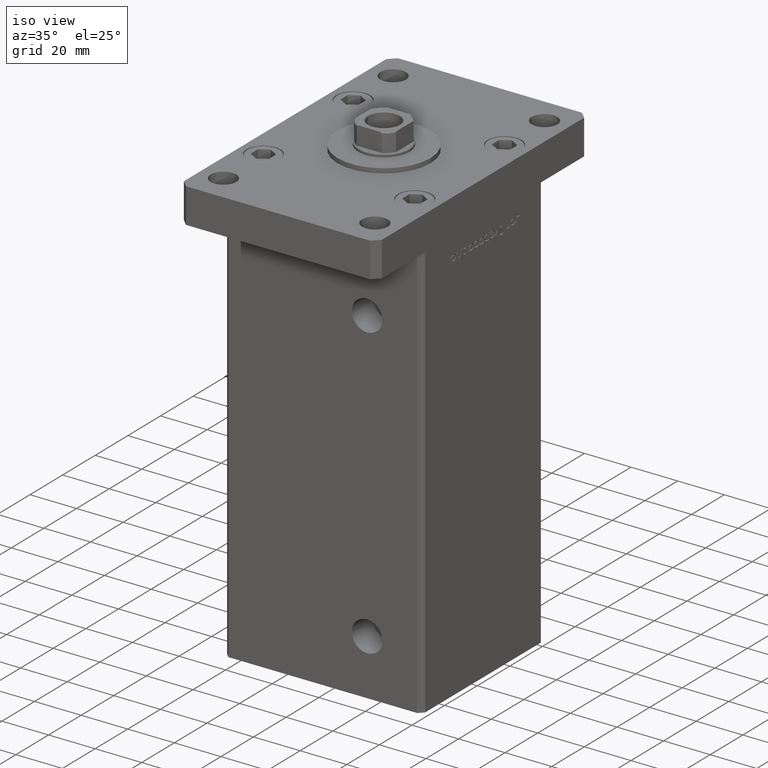
[diagram: clean part render]
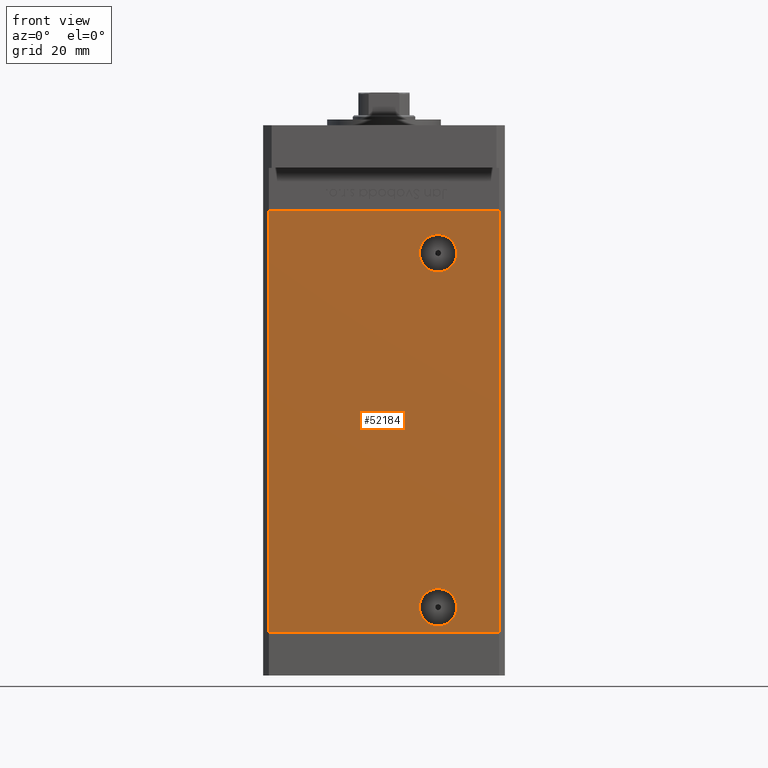
[diagram: tour spotlight — one face highlighted and labeled with its STEP entity id]
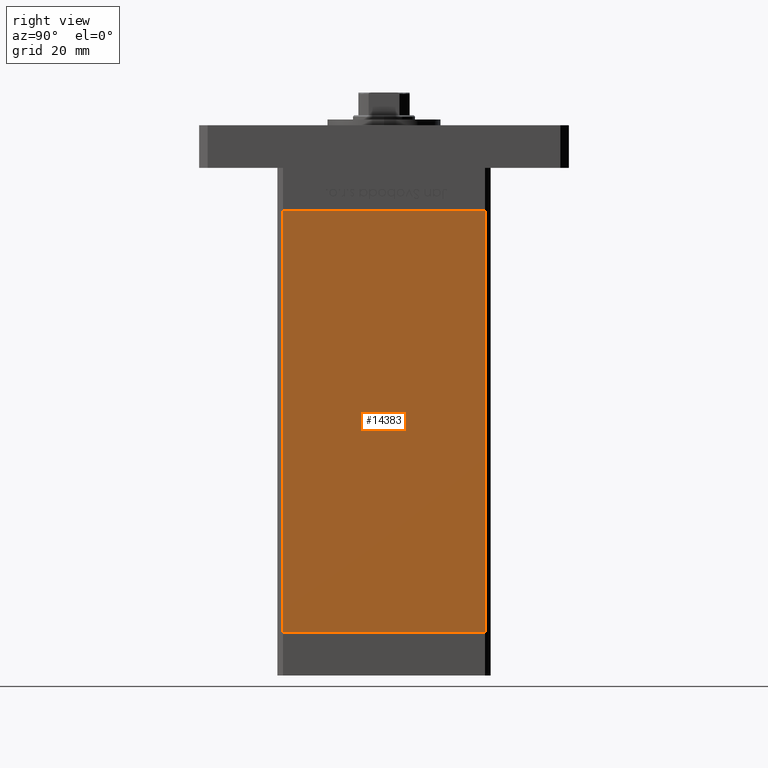
[diagram: tour spotlight — one face highlighted and labeled with its STEP entity id]
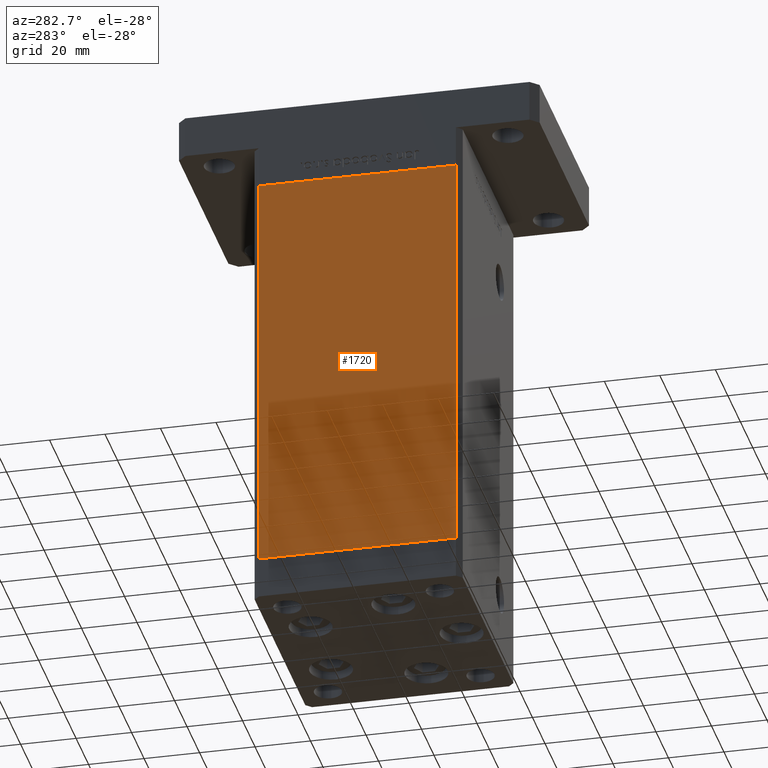
[diagram: tour spotlight — one face highlighted and labeled with its STEP entity id]
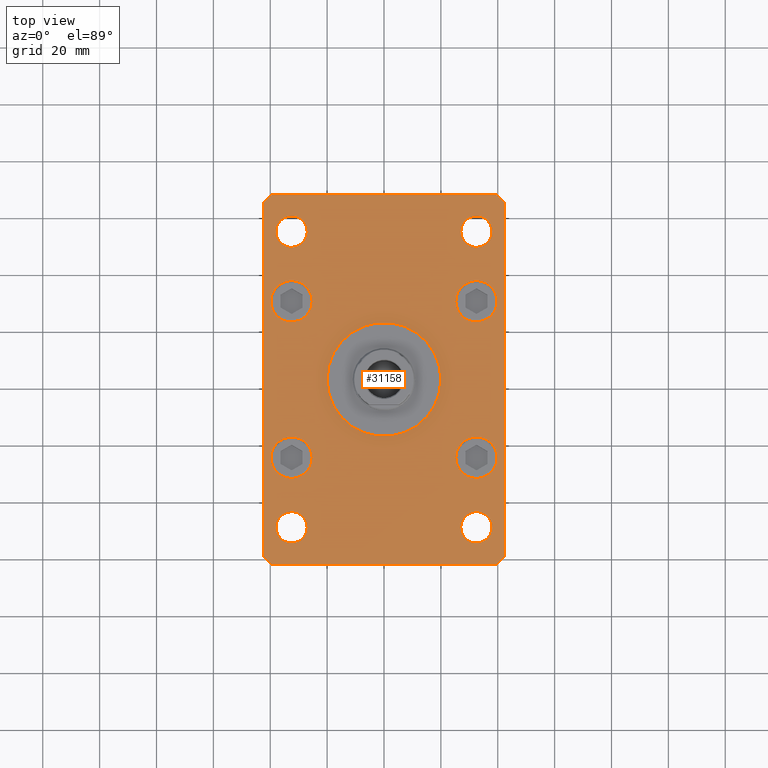
[diagram: tour spotlight — one face highlighted and labeled with its STEP entity id]
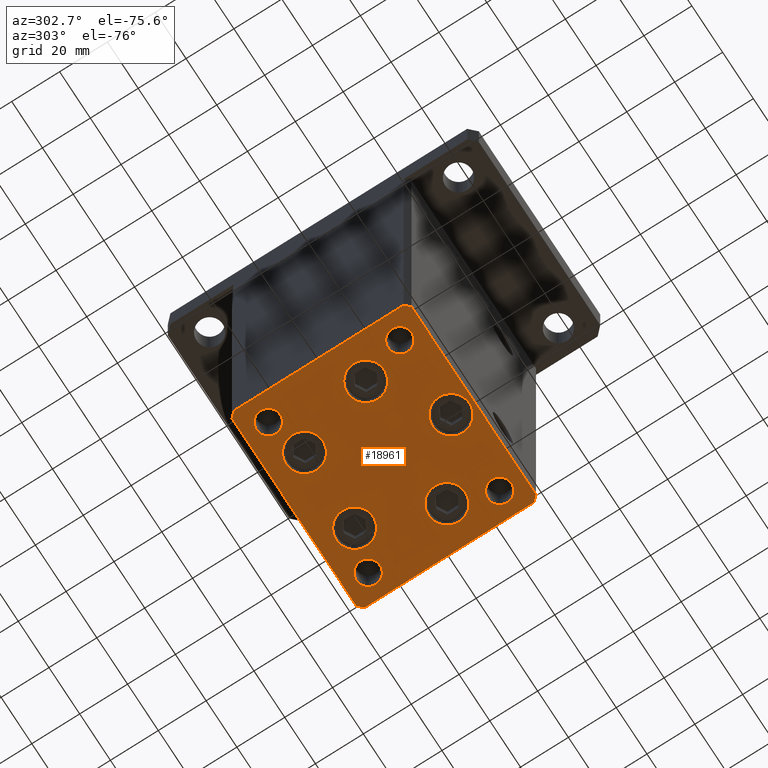
[diagram: tour spotlight — one face highlighted and labeled with its STEP entity id]
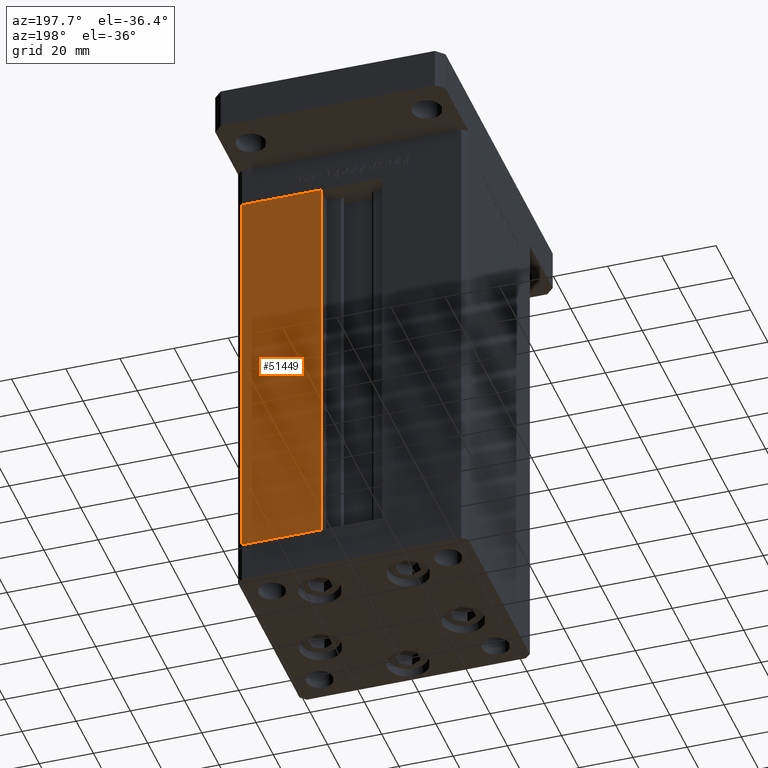
[diagram: tour spotlight — one face highlighted and labeled with its STEP entity id]
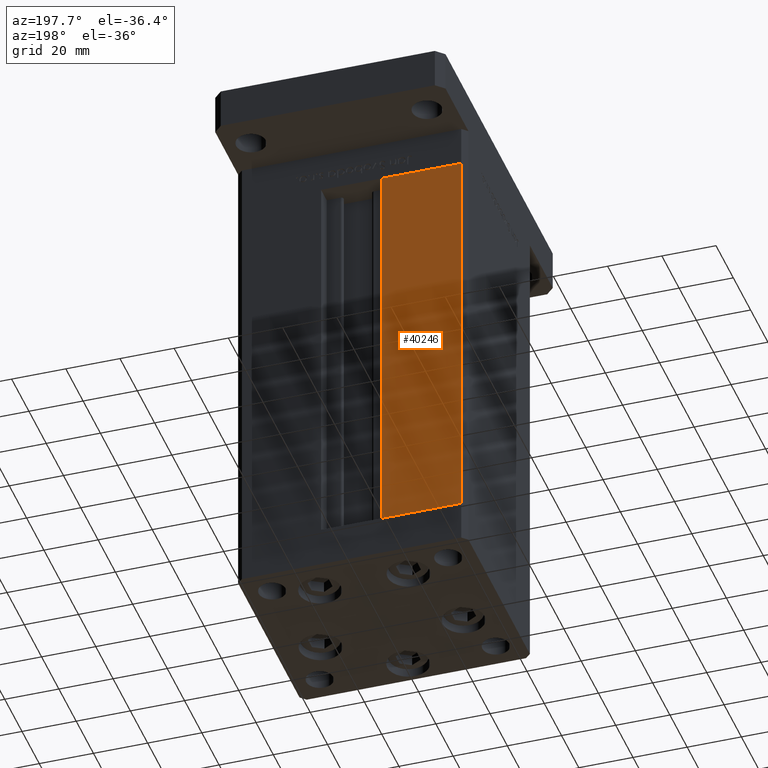
[diagram: tour spotlight — one face highlighted and labeled with its STEP entity id]
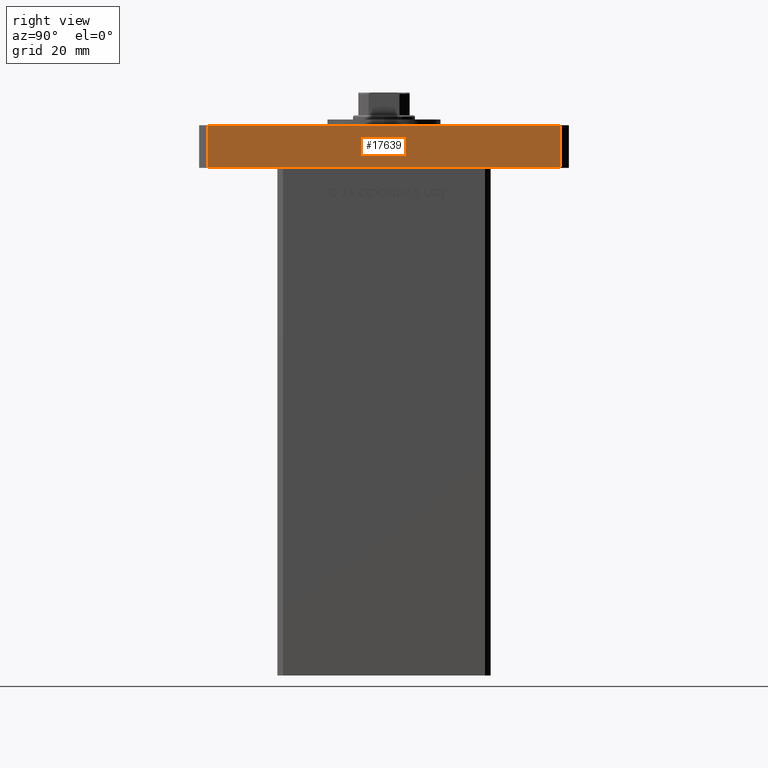
[diagram: tour spotlight — one face highlighted and labeled with its STEP entity id]
A machine part: a face-by-face anatomy tour. The part has 1310 B-rep faces; the first image is the clean iso view, then the 8 largest visible faces are spotlighted one at a time (largest first), each with its STEP entity span.

Face 1 — front view, entity #52184. In plain terms, the highlighted planar face has unit normal (0, 1, 0).
Definition (entity closure, byte-faithful):
#413 = CIRCLE ( 'NONE', #22048, 6.580000000000002736 ) ;
#548 = FACE_BOUND ( 'NONE', #35224, .T. ) ;
#629 = CARTESIAN_POINT ( 'NONE',  ( 18.99999999999998934, -37.50000000000000711, 15.58000000000000718 ) ) ;
#813 = DIRECTION ( 'NONE',  ( -0.000000000000000000, -0.000000000000000000, -1.000000000000000000 ) ) ;
#2682 = EDGE_CURVE ( 'NONE', #49380, #47498, #17695, .T. ) ;
#3154 = LINE ( 'NONE', #27001, #6567 ) ;
#3358 = CARTESIAN_POINT ( 'NONE',  ( 18.99999999999997513, -37.50000000000000711, 133.5000000000000000 ) ) ;
#3680 = EDGE_CURVE ( 'NONE', #37396, #31482, #413, .T. ) ;
#3864 = VECTOR ( 'NONE', #50895, 1000.000000000000000 ) ;
#4353 = DIRECTION ( 'NONE',  ( 0.000000000000000000, -0.000000000000000000, 1.000000000000000000 ) ) ;
#4675 = ORIENTED_EDGE ( 'NONE', *, *, #3680, .T. ) ;
#4775 = ORIENTED_EDGE ( 'NONE', *, *, #2682, .F. ) ;
#6182 = DIRECTION ( 'NONE',  ( -0.000000000000000000, 1.000000000000000000, -0.000000000000000000 ) ) ;
#6364 = DIRECTION ( 'NONE',  ( -0.000000000000000000, -0.000000000000000000, -1.000000000000000000 ) ) ;
#6395 = DIRECTION ( 'NONE',  ( 1.000000000000000000, 0.000000000000000000, 0.000000000000000000 ) ) ;
#6456 = CIRCLE ( 'NONE', #47151, 6.580000000000002736 ) ;
#6567 = VECTOR ( 'NONE', #6395, 1000.000000000000000 ) ;
#9043 = CARTESIAN_POINT ( 'NONE',  ( 18.99999999999997513, -37.50000000000000711, 140.0800000000000125 ) ) ;
#9330 = CARTESIAN_POINT ( 'NONE',  ( -40.49999999999998579, -37.50000000000000711, 148.5000000000000000 ) ) ;
#9847 = VERTEX_POINT ( 'NONE', #9330 ) ;
#10727 = CARTESIAN_POINT ( 'NONE',  ( 18.99999999999998934, -37.50000000000000711, 9.000000000000007105 ) ) ;
#11259 = VERTEX_POINT ( 'NONE', #19400 ) ;
#11881 = AXIS2_PLACEMENT_3D ( 'NONE', #46383, #46117, #4353 ) ;
#12311 = ORIENTED_EDGE ( 'NONE', *, *, #25023, .F. ) ;
#12681 = EDGE_LOOP ( 'NONE', ( #46921, #12311, #51602, #52446 ) ) ;
#13029 = EDGE_LOOP ( 'NONE', ( #45111, #4675 ) ) ;
#13847 = AXIS2_PLACEMENT_3D ( 'NONE', #10727, #14811, #15339 ) ;
#14523 = CARTESIAN_POINT ( 'NONE',  ( 40.49999999999998579, -37.50000000000000711, 148.5000000000000000 ) ) ;
#14811 = DIRECTION ( 'NONE',  ( 0.000000000000000000, -1.000000000000000000, 0.000000000000000000 ) ) ;
#15339 = DIRECTION ( 'NONE',  ( 0.000000000000000000, 0.000000000000000000, -1.000000000000000000 ) ) ;
#17371 = CARTESIAN_POINT ( 'NONE',  ( -40.49999999999998579, -37.50000000000000711, 148.5000000000000000 ) ) ;
#17375 = FACE_BOUND ( 'NONE', #13029, .T. ) ;
#17437 = VECTOR ( 'NONE', #813, 1000.000000000000000 ) ;
#17695 = CIRCLE ( 'NONE', #26336, 6.579999999999998295 ) ;
#17822 = CARTESIAN_POINT ( 'NONE',  ( -40.49999999999998579, -37.50000000000000711, 148.5000000000000000 ) ) ;
#18417 = CARTESIAN_POINT ( 'NONE',  ( 18.99999999999997513, -37.50000000000000711, 133.5000000000000000 ) ) ;
#18624 = LINE ( 'NONE', #17822, #3864 ) ;
#19400 = CARTESIAN_POINT ( 'NONE',  ( -40.49999999999998579, -37.50000000000000711, 0.000000000000000000 ) ) ;
#19644 = DIRECTION ( 'NONE',  ( 0.000000000000000000, 0.000000000000000000, -1.000000000000000000 ) ) ;
#19782 = VERTEX_POINT ( 'NONE', #33256 ) ;
#19894 = CIRCLE ( 'NONE', #13847, 6.579999999999998295 ) ;
#21593 = EDGE_CURVE ( 'NONE', #47498, #49380, #19894, .T. ) ;
#22048 = AXIS2_PLACEMENT_3D ( 'NONE', #18417, #6182, #22716 ) ;
#22716 = DIRECTION ( 'NONE',  ( 0.000000000000000000, 0.000000000000000000, -1.000000000000000000 ) ) ;
#25023 = EDGE_CURVE ( 'NONE', #41401, #19782, #31312, .T. ) ;
#26336 = AXIS2_PLACEMENT_3D ( 'NONE', #33560, #29493, #41720 ) ;
#27001 = CARTESIAN_POINT ( 'NONE',  ( -40.49999999999998579, -37.50000000000000711, 0.000000000000000000 ) ) ;
#27337 = EDGE_CURVE ( 'NONE', #9847, #11259, #35428, .T. ) ;
#28270 = DIRECTION ( 'NONE',  ( -0.000000000000000000, 1.000000000000000000, -0.000000000000000000 ) ) ;
#29493 = DIRECTION ( 'NONE',  ( 0.000000000000000000, -1.000000000000000000, 0.000000000000000000 ) ) ;
#31312 = LINE ( 'NONE', #14523, #49400 ) ;
#31482 = VERTEX_POINT ( 'NONE', #38624 ) ;
#33256 = CARTESIAN_POINT ( 'NONE',  ( 40.49999999999998579, -37.50000000000000711, 0.000000000000000000 ) ) ;
#33560 = CARTESIAN_POINT ( 'NONE',  ( 18.99999999999998934, -37.50000000000000711, 9.000000000000007105 ) ) ;
#34152 = PLANE ( 'NONE',  #11881 ) ;
#35224 = EDGE_LOOP ( 'NONE', ( #4775, #44649 ) ) ;
#35428 = LINE ( 'NONE', #17371, #17437 ) ;
#37396 = VERTEX_POINT ( 'NONE', #9043 ) ;
#37416 = FACE_OUTER_BOUND ( 'NONE', #12681, .T. ) ;
#38624 = CARTESIAN_POINT ( 'NONE',  ( 18.99999999999997513, -37.50000000000000711, 126.9200000000000017 ) ) ;
#39547 = CARTESIAN_POINT ( 'NONE',  ( 18.99999999999998934, -37.50000000000000711, 2.420000000000009699 ) ) ;
#40360 = EDGE_CURVE ( 'NONE', #31482, #37396, #6456, .T. ) ;
#41237 = EDGE_CURVE ( 'NONE', #9847, #41401, #18624, .T. ) ;
#41401 = VERTEX_POINT ( 'NONE', #42686 ) ;
#41720 = DIRECTION ( 'NONE',  ( 0.000000000000000000, 0.000000000000000000, -1.000000000000000000 ) ) ;
#42686 = CARTESIAN_POINT ( 'NONE',  ( 40.49999999999998579, -37.50000000000000711, 148.5000000000000000 ) ) ;
#44649 = ORIENTED_EDGE ( 'NONE', *, *, #21593, .F. ) ;
#45111 = ORIENTED_EDGE ( 'NONE', *, *, #40360, .T. ) ;
#46117 = DIRECTION ( 'NONE',  ( 0.000000000000000000, 1.000000000000000000, 0.000000000000000000 ) ) ;
#46383 = CARTESIAN_POINT ( 'NONE',  ( -40.49999999999998579, -37.50000000000000711, 148.5000000000000000 ) ) ;
#46921 = ORIENTED_EDGE ( 'NONE', *, *, #49697, .T. ) ;
#47151 = AXIS2_PLACEMENT_3D ( 'NONE', #3358, #28270, #19644 ) ;
#47498 = VERTEX_POINT ( 'NONE', #629 ) ;
#49380 = VERTEX_POINT ( 'NONE', #39547 ) ;
#49400 = VECTOR ( 'NONE', #6364, 1000.000000000000000 ) ;
#49697 = EDGE_CURVE ( 'NONE', #11259, #19782, #3154, .T. ) ;
#50895 = DIRECTION ( 'NONE',  ( 1.000000000000000000, 0.000000000000000000, 0.000000000000000000 ) ) ;
#51602 = ORIENTED_EDGE ( 'NONE', *, *, #41237, .F. ) ;
#52184 = ADVANCED_FACE ( 'NONE', ( #548, #37416, #17375 ), #34152, .F. ) ;
#52446 = ORIENTED_EDGE ( 'NONE', *, *, #27337, .T. ) ;

Face 2 — right view, entity #14383. In plain terms, the highlighted planar face has unit normal (1, -0, 0).
Definition (entity closure, byte-faithful):
#121 = DIRECTION ( 'NONE',  ( -0.000000000000000000, -0.000000000000000000, -1.000000000000000000 ) ) ;
#487 = VECTOR ( 'NONE', #121, 1000.000000000000000 ) ;
#2177 = CARTESIAN_POINT ( 'NONE',  ( 42.50000000000000711, 35.50000000000001421, 148.5000000000000000 ) ) ;
#3935 = DIRECTION ( 'NONE',  ( 1.000000000000000000, -2.931927001650941360E-16, 0.000000000000000000 ) ) ;
#6225 = VECTOR ( 'NONE', #50465, 1000.000000000000000 ) ;
#9531 = VERTEX_POINT ( 'NONE', #26862 ) ;
#14383 = ADVANCED_FACE ( 'NONE', ( #15888 ), #32407, .T. ) ;
#15888 = FACE_OUTER_BOUND ( 'NONE', #50925, .T. ) ;
#16232 = ORIENTED_EDGE ( 'NONE', *, *, #53209, .T. ) ;
#18732 = DIRECTION ( 'NONE',  ( -2.931927001650941360E-16, -1.000000000000000000, 0.000000000000000000 ) ) ;
#19718 = VECTOR ( 'NONE', #18732, 1000.000000000000000 ) ;
#20427 = ORIENTED_EDGE ( 'NONE', *, *, #46044, .F. ) ;
#20928 = ORIENTED_EDGE ( 'NONE', *, *, #48789, .T. ) ;
#22674 = VERTEX_POINT ( 'NONE', #33999 ) ;
#22702 = CARTESIAN_POINT ( 'NONE',  ( 42.50000000000000711, 35.50000000000001421, 0.000000000000000000 ) ) ;
#23631 = CARTESIAN_POINT ( 'NONE',  ( 42.50000000000000711, 35.50000000000001421, 0.000000000000000000 ) ) ;
#26377 = VECTOR ( 'NONE', #29211, 1000.000000000000000 ) ;
#26832 = ORIENTED_EDGE ( 'NONE', *, *, #33288, .F. ) ;
#26862 = CARTESIAN_POINT ( 'NONE',  ( 42.49999999999998579, -35.50000000000000711, 148.5000000000000000 ) ) ;
#28063 = CARTESIAN_POINT ( 'NONE',  ( 42.50000000000000711, 35.50000000000001421, 148.5000000000000000 ) ) ;
#28322 = CARTESIAN_POINT ( 'NONE',  ( 42.49999999999998579, -35.50000000000000711, 148.5000000000000000 ) ) ;
#28355 = VERTEX_POINT ( 'NONE', #42851 ) ;
#29110 = LINE ( 'NONE', #28322, #487 ) ;
#29211 = DIRECTION ( 'NONE',  ( -2.931927001650941360E-16, -1.000000000000000000, 0.000000000000000000 ) ) ;
#29833 = CARTESIAN_POINT ( 'NONE',  ( 42.50000000000000711, 35.50000000000001421, 148.5000000000000000 ) ) ;
#32407 = PLANE ( 'NONE',  #39703 ) ;
#33288 = EDGE_CURVE ( 'NONE', #28355, #35152, #41530, .T. ) ;
#33999 = CARTESIAN_POINT ( 'NONE',  ( 42.49999999999998579, -35.50000000000000711, 0.000000000000000000 ) ) ;
#35152 = VERTEX_POINT ( 'NONE', #22702 ) ;
#36096 = LINE ( 'NONE', #23631, #26377 ) ;
#37690 = LINE ( 'NONE', #2177, #19718 ) ;
#39703 = AXIS2_PLACEMENT_3D ( 'NONE', #28063, #3935, #45164 ) ;
#41530 = LINE ( 'NONE', #29833, #6225 ) ;
#42851 = CARTESIAN_POINT ( 'NONE',  ( 42.50000000000000711, 35.50000000000001421, 148.5000000000000000 ) ) ;
#45164 = DIRECTION ( 'NONE',  ( 2.931927001650941360E-16, 1.000000000000000000, 0.000000000000000000 ) ) ;
#46044 = EDGE_CURVE ( 'NONE', #35152, #22674, #36096, .T. ) ;
#48789 = EDGE_CURVE ( 'NONE', #9531, #22674, #29110, .T. ) ;
#50465 = DIRECTION ( 'NONE',  ( -0.000000000000000000, -0.000000000000000000, -1.000000000000000000 ) ) ;
#50925 = EDGE_LOOP ( 'NONE', ( #20427, #26832, #16232, #20928 ) ) ;
#53209 = EDGE_CURVE ( 'NONE', #28355, #9531, #37690, .T. ) ;

Face 3 — auxiliary view, entity #1720. In plain terms, the highlighted planar face has unit normal (1, 0, 0).
Definition (entity closure, byte-faithful):
#823 = PLANE ( 'NONE',  #32383 ) ;
#1255 = LINE ( 'NONE', #38389, #9228 ) ;
#1439 = LINE ( 'NONE', #34511, #5049 ) ;
#1666 = ORIENTED_EDGE ( 'NONE', *, *, #51445, .F. ) ;
#1720 = ADVANCED_FACE ( 'NONE', ( #42045 ), #823, .F. ) ;
#5049 = VECTOR ( 'NONE', #13921, 1000.000000000000000 ) ;
#6874 = ORIENTED_EDGE ( 'NONE', *, *, #33505, .T. ) ;
#8143 = ORIENTED_EDGE ( 'NONE', *, *, #8936, .F. ) ;
#8756 = VERTEX_POINT ( 'NONE', #31938 ) ;
#8936 = EDGE_CURVE ( 'NONE', #38949, #19456, #1255, .T. ) ;
#9228 = VECTOR ( 'NONE', #34331, 1000.000000000000000 ) ;
#9827 = CARTESIAN_POINT ( 'NONE',  ( -42.50000000000000711, 35.50000000000001421, 0.000000000000000000 ) ) ;
#12415 = EDGE_LOOP ( 'NONE', ( #48325, #8143, #1666, #6874 ) ) ;
#13921 = DIRECTION ( 'NONE',  ( 2.931927001650941360E-16, -1.000000000000000000, 0.000000000000000000 ) ) ;
#14347 = CARTESIAN_POINT ( 'NONE',  ( -42.49999999999998579, -35.50000000000000711, 148.5000000000000000 ) ) ;
#14917 = VECTOR ( 'NONE', #44481, 1000.000000000000000 ) ;
#15152 = CARTESIAN_POINT ( 'NONE',  ( -42.49999999999998579, -35.50000000000000711, 0.000000000000000000 ) ) ;
#17352 = VERTEX_POINT ( 'NONE', #9827 ) ;
#17383 = CARTESIAN_POINT ( 'NONE',  ( -42.50000000000000711, 35.50000000000001421, 148.5000000000000000 ) ) ;
#18334 = EDGE_CURVE ( 'NONE', #17352, #19456, #1439, .T. ) ;
#19456 = VERTEX_POINT ( 'NONE', #15152 ) ;
#23317 = LINE ( 'NONE', #36584, #14917 ) ;
#29109 = VECTOR ( 'NONE', #30293, 1000.000000000000000 ) ;
#30293 = DIRECTION ( 'NONE',  ( 2.931927001650941360E-16, -1.000000000000000000, 0.000000000000000000 ) ) ;
#31938 = CARTESIAN_POINT ( 'NONE',  ( -42.50000000000000711, 35.50000000000001421, 148.5000000000000000 ) ) ;
#32383 = AXIS2_PLACEMENT_3D ( 'NONE', #17383, #50452, #38774 ) ;
#33505 = EDGE_CURVE ( 'NONE', #8756, #17352, #23317, .T. ) ;
#34331 = DIRECTION ( 'NONE',  ( -0.000000000000000000, -0.000000000000000000, -1.000000000000000000 ) ) ;
#34511 = CARTESIAN_POINT ( 'NONE',  ( -42.50000000000000711, 35.50000000000001421, 0.000000000000000000 ) ) ;
#36584 = CARTESIAN_POINT ( 'NONE',  ( -42.50000000000000711, 35.50000000000001421, 148.5000000000000000 ) ) ;
#38389 = CARTESIAN_POINT ( 'NONE',  ( -42.49999999999998579, -35.50000000000000711, 148.5000000000000000 ) ) ;
#38774 = DIRECTION ( 'NONE',  ( -2.931927001650941360E-16, 1.000000000000000000, 0.000000000000000000 ) ) ;
#38949 = VERTEX_POINT ( 'NONE', #14347 ) ;
#42045 = FACE_OUTER_BOUND ( 'NONE', #12415, .T. ) ;
#44481 = DIRECTION ( 'NONE',  ( -0.000000000000000000, -0.000000000000000000, -1.000000000000000000 ) ) ;
#45565 = LINE ( 'NONE', #51465, #29109 ) ;
#48325 = ORIENTED_EDGE ( 'NONE', *, *, #18334, .T. ) ;
#50452 = DIRECTION ( 'NONE',  ( 1.000000000000000000, 2.931927001650941360E-16, -0.000000000000000000 ) ) ;
#51445 = EDGE_CURVE ( 'NONE', #8756, #38949, #45565, .T. ) ;
#51465 = CARTESIAN_POINT ( 'NONE',  ( -42.50000000000000711, 35.50000000000001421, 148.5000000000000000 ) ) ;

Face 4 — top view, entity #31158. In plain terms, the highlighted planar face has unit normal (0, 0, 1).
Definition (entity closure, byte-faithful):
#67 = DIRECTION ( 'NONE',  ( 1.000000000000000000, 1.405345600791337191E-15, 0.000000000000000000 ) ) ;
#488 = AXIS2_PLACEMENT_3D ( 'NONE', #29684, #28619, #37020 ) ;
#634 = VERTEX_POINT ( 'NONE', #25210 ) ;
#743 = CARTESIAN_POINT ( 'NONE',  ( -25.25000000000000711, 27.50000000000000000, 15.00000000000000000 ) ) ;
#1059 = VERTEX_POINT ( 'NONE', #5626 ) ;
#1512 = LINE ( 'NONE', #26165, #45961 ) ;
#1670 = CARTESIAN_POINT ( 'NONE',  ( -32.49999999999997868, -52.00000000000000711, 15.00000000000000000 ) ) ;
#1801 = CARTESIAN_POINT ( 'NONE',  ( -32.50000000000000711, 27.50000000000000000, 15.00000000000000000 ) ) ;
#1938 = DIRECTION ( 'NONE',  ( 1.000000000000000000, 0.000000000000000000, 0.000000000000000000 ) ) ;
#2205 = AXIS2_PLACEMENT_3D ( 'NONE', #4231, #20785, #3706 ) ;
#2467 = AXIS2_PLACEMENT_3D ( 'NONE', #23509, #17647, #22703 ) ;
#2697 = CIRCLE ( 'NONE', #32976, 5.499999999999994671 ) ;
#3308 = VERTEX_POINT ( 'NONE', #25485 ) ;
#3377 = EDGE_CURVE ( 'NONE', #36072, #46642, #10836, .T. ) ;
#3688 = AXIS2_PLACEMENT_3D ( 'NONE', #50899, #34877, #13746 ) ;
#3706 = DIRECTION ( 'NONE',  ( 1.000000000000000000, 0.000000000000000000, 0.000000000000000000 ) ) ;
#3716 = CARTESIAN_POINT ( 'NONE',  ( -32.50000000000000711, 27.50000000000000000, 15.00000000000000000 ) ) ;
#3802 = DIRECTION ( 'NONE',  ( 1.000000000000000000, 0.000000000000000000, 0.000000000000000000 ) ) ;
#4231 = CARTESIAN_POINT ( 'NONE',  ( 32.50000000000000000, -27.50000000000000000, 15.00000000000000000 ) ) ;
#4354 = EDGE_CURVE ( 'NONE', #44997, #40589, #45476, .T. ) ;
#4355 = VERTEX_POINT ( 'NONE', #19341 ) ;
#4370 = AXIS2_PLACEMENT_3D ( 'NONE', #52149, #31777, #27700 ) ;
#4385 = EDGE_CURVE ( 'NONE', #52195, #11480, #48620, .T. ) ;
#4713 = EDGE_LOOP ( 'NONE', ( #43989, #24804 ) ) ;
#5439 = CARTESIAN_POINT ( 'NONE',  ( -32.50000000000000000, 52.00000000000000000, 15.00000000000000000 ) ) ;
#5626 = CARTESIAN_POINT ( 'NONE',  ( 27.00000000000001421, 51.99999999999999289, 15.00000000000000000 ) ) ;
#5823 = VERTEX_POINT ( 'NONE', #17309 ) ;
#6110 = EDGE_CURVE ( 'NONE', #48241, #35791, #6568, .T. ) ;
#6237 = DIRECTION ( 'NONE',  ( 0.000000000000000000, 0.000000000000000000, 1.000000000000000000 ) ) ;
#6349 = ORIENTED_EDGE ( 'NONE', *, *, #4385, .T. ) ;
#6568 = CIRCLE ( 'NONE', #488, 7.249999999999999112 ) ;
#7148 = ORIENTED_EDGE ( 'NONE', *, *, #4354, .F. ) ;
#7158 = ORIENTED_EDGE ( 'NONE', *, *, #17627, .F. ) ;
#7283 = DIRECTION ( 'NONE',  ( 0.000000000000000000, 0.000000000000000000, 1.000000000000000000 ) ) ;
#7414 = CARTESIAN_POINT ( 'NONE',  ( -37.99999999999997868, -52.00000000000000711, 15.00000000000000000 ) ) ;
#7456 = DIRECTION ( 'NONE',  ( 0.000000000000000000, 0.000000000000000000, 1.000000000000000000 ) ) ;
#7722 = CARTESIAN_POINT ( 'NONE',  ( 0.000000000000000000, 0.000000000000000000, 15.00000000000000000 ) ) ;
#7858 = CARTESIAN_POINT ( 'NONE',  ( -32.50000000000000000, 52.00000000000000000, 15.00000000000000000 ) ) ;
#8172 = CIRCLE ( 'NONE', #50629, 20.00000000000000000 ) ;
#8523 = EDGE_LOOP ( 'NONE', ( #39758, #38015 ) ) ;
#8666 = ORIENTED_EDGE ( 'NONE', *, *, #37987, .F. ) ;
#8929 = CIRCLE ( 'NONE', #40108, 7.249999999999999112 ) ;
#9229 = EDGE_CURVE ( 'NONE', #4355, #41035, #52441, .T. ) ;
#9654 = EDGE_CURVE ( 'NONE', #50297, #21357, #44788, .T. ) ;
#9866 = AXIS2_PLACEMENT_3D ( 'NONE', #1670, #34464, #1938 ) ;
#9887 = ORIENTED_EDGE ( 'NONE', *, *, #6110, .F. ) ;
#10199 = DIRECTION ( 'NONE',  ( 1.000000000000000000, 0.000000000000000000, 0.000000000000000000 ) ) ;
#10499 = VERTEX_POINT ( 'NONE', #41495 ) ;
#10673 = ORIENTED_EDGE ( 'NONE', *, *, #45129, .F. ) ;
#10824 = PLANE ( 'NONE',  #13986 ) ;
#10836 = CIRCLE ( 'NONE', #30718, 5.499999999999998224 ) ;
#11206 = DIRECTION ( 'NONE',  ( 2.238352872228137677E-16, -1.000000000000000000, 0.000000000000000000 ) ) ;
#11446 = CARTESIAN_POINT ( 'NONE',  ( 37.99999999999999289, 51.99999999999999289, 15.00000000000000000 ) ) ;
#11459 = CIRCLE ( 'NONE', #27012, 7.249999999999999112 ) ;
#11480 = VERTEX_POINT ( 'NONE', #17937 ) ;
#11723 = CARTESIAN_POINT ( 'NONE',  ( 32.50000000000000000, 27.50000000000000000, 15.00000000000000000 ) ) ;
#12277 = EDGE_CURVE ( 'NONE', #52379, #52195, #31520, .T. ) ;
#12416 = CIRCLE ( 'NONE', #23680, 20.00000000000000000 ) ;
#13510 = CARTESIAN_POINT ( 'NONE',  ( 20.00000000000000000, 2.449293598294706513E-15, 15.00000000000000000 ) ) ;
#13530 = EDGE_CURVE ( 'NONE', #34482, #3308, #34601, .T. ) ;
#13559 = CARTESIAN_POINT ( 'NONE',  ( 32.50000000000000000, -27.50000000000000000, 15.00000000000000000 ) ) ;
#13693 = EDGE_LOOP ( 'NONE', ( #7158, #23472 ) ) ;
#13746 = DIRECTION ( 'NONE',  ( 1.000000000000000000, 0.000000000000000000, 0.000000000000000000 ) ) ;
#13965 = VERTEX_POINT ( 'NONE', #26258 ) ;
#13986 = AXIS2_PLACEMENT_3D ( 'NONE', #39834, #7283, #19781 ) ;
#13993 = CARTESIAN_POINT ( 'NONE',  ( 37.99999999999997868, -52.00000000000000711, 15.00000000000000000 ) ) ;
#14472 = CARTESIAN_POINT ( 'NONE',  ( 39.50000000000001421, -64.99999999999988631, 15.00000000000000000 ) ) ;
#14753 = EDGE_CURVE ( 'NONE', #634, #52379, #20687, .T. ) ;
#14761 = CARTESIAN_POINT ( 'NONE',  ( 32.50000000000000000, 27.50000000000000000, 15.00000000000000000 ) ) ;
#14818 = DIRECTION ( 'NONE',  ( -1.000000000000000000, -3.513364001978340512E-16, 0.000000000000000000 ) ) ;
#15081 = CARTESIAN_POINT ( 'NONE',  ( 39.50000000000002842, 65.00000000000002842, 15.00000000000000000 ) ) ;
#15534 = DIRECTION ( 'NONE',  ( 0.000000000000000000, 0.000000000000000000, 1.000000000000000000 ) ) ;
#15716 = CARTESIAN_POINT ( 'NONE',  ( 39.50000000000001421, -64.99999999999988631, 15.00000000000000000 ) ) ;
#15790 = LINE ( 'NONE', #52418, #40733 ) ;
#16838 = AXIS2_PLACEMENT_3D ( 'NONE', #5439, #20921, #30105 ) ;
#16874 = CIRCLE ( 'NONE', #48929, 5.499999999999991118 ) ;
#17098 = VERTEX_POINT ( 'NONE', #28015 ) ;
#17107 = CARTESIAN_POINT ( 'NONE',  ( 42.50000000000000000, -61.99999999999988631, 15.00000000000000000 ) ) ;
#17309 = CARTESIAN_POINT ( 'NONE',  ( -20.00000000000000000, 0.000000000000000000, 15.00000000000000000 ) ) ;
#17627 = EDGE_CURVE ( 'NONE', #1059, #32418, #25817, .T. ) ;
#17647 = DIRECTION ( 'NONE',  ( 0.000000000000000000, 0.000000000000000000, 1.000000000000000000 ) ) ;
#17937 = CARTESIAN_POINT ( 'NONE',  ( 42.50000000000000000, 62.00000000000000711, 15.00000000000000000 ) ) ;
#18678 = VECTOR ( 'NONE', #19876, 1000.000000000000000 ) ;
#19115 = EDGE_LOOP ( 'NONE', ( #7148, #45938 ) ) ;
#19341 = CARTESIAN_POINT ( 'NONE',  ( -42.50000000000002132, 62.00000000000000711, 15.00000000000000000 ) ) ;
#19344 = DIRECTION ( 'NONE',  ( 0.7071067811865459074, 0.7071067811865491270, 0.000000000000000000 ) ) ;
#19679 = AXIS2_PLACEMENT_3D ( 'NONE', #7858, #40948, #3802 ) ;
#19781 = DIRECTION ( 'NONE',  ( 1.000000000000000000, 0.000000000000000000, -0.000000000000000000 ) ) ;
#19876 = DIRECTION ( 'NONE',  ( 0.000000000000000000, 1.000000000000000000, 0.000000000000000000 ) ) ;
#19951 = DIRECTION ( 'NONE',  ( 1.000000000000000000, 0.000000000000000000, 0.000000000000000000 ) ) ;
#20050 = FACE_BOUND ( 'NONE', #8523, .T. ) ;
#20532 = DIRECTION ( 'NONE',  ( 1.000000000000000000, 0.000000000000000000, 0.000000000000000000 ) ) ;
#20676 = ORIENTED_EDGE ( 'NONE', *, *, #25369, .T. ) ;
#20687 = LINE ( 'NONE', #33937, #43238 ) ;
#20769 = ORIENTED_EDGE ( 'NONE', *, *, #44434, .F. ) ;
#20785 = DIRECTION ( 'NONE',  ( 0.000000000000000000, 0.000000000000000000, 1.000000000000000000 ) ) ;
#20921 = DIRECTION ( 'NONE',  ( 0.000000000000000000, 0.000000000000000000, 1.000000000000000000 ) ) ;
#21196 = VERTEX_POINT ( 'NONE', #743 ) ;
#21357 = VERTEX_POINT ( 'NONE', #40074 ) ;
#22004 = CIRCLE ( 'NONE', #16838, 5.499999999999994671 ) ;
#22613 = DIRECTION ( 'NONE',  ( 1.000000000000000000, 0.000000000000000000, 0.000000000000000000 ) ) ;
#22703 = DIRECTION ( 'NONE',  ( 1.000000000000000000, 0.000000000000000000, 0.000000000000000000 ) ) ;
#22771 = DIRECTION ( 'NONE',  ( 1.000000000000000000, 0.000000000000000000, 0.000000000000000000 ) ) ;
#23396 = CARTESIAN_POINT ( 'NONE',  ( -42.50000000000002132, 62.00000000000000711, 15.00000000000000000 ) ) ;
#23436 = ORIENTED_EDGE ( 'NONE', *, *, #13530, .T. ) ;
#23472 = ORIENTED_EDGE ( 'NONE', *, *, #45176, .F. ) ;
#23509 = CARTESIAN_POINT ( 'NONE',  ( 32.50000000000000000, 51.99999999999999289, 15.00000000000000000 ) ) ;
#23680 = AXIS2_PLACEMENT_3D ( 'NONE', #7722, #7456, #19951 ) ;
#23740 = ORIENTED_EDGE ( 'NONE', *, *, #9229, .T. ) ;
#23822 = FACE_BOUND ( 'NONE', #24753, .T. ) ;
#23989 = ORIENTED_EDGE ( 'NONE', *, *, #31041, .F. ) ;
#24090 = FACE_OUTER_BOUND ( 'NONE', #35101, .T. ) ;
#24118 = DIRECTION ( 'NONE',  ( 1.000000000000000000, 0.000000000000000000, 0.000000000000000000 ) ) ;
#24356 = FACE_BOUND ( 'NONE', #46427, .T. ) ;
#24753 = EDGE_LOOP ( 'NONE', ( #26106, #26466 ) ) ;
#24804 = ORIENTED_EDGE ( 'NONE', *, *, #3377, .F. ) ;
#24983 = EDGE_CURVE ( 'NONE', #41035, #634, #1512, .T. ) ;
#25062 = ORIENTED_EDGE ( 'NONE', *, *, #46405, .F. ) ;
#25210 = CARTESIAN_POINT ( 'NONE',  ( -39.50000000000000000, -65.00000000000000000, 15.00000000000000000 ) ) ;
#25369 = EDGE_CURVE ( 'NONE', #11480, #34482, #15790, .T. ) ;
#25485 = CARTESIAN_POINT ( 'NONE',  ( -39.50000000000003553, 65.00000000000000000, 15.00000000000000000 ) ) ;
#25786 = EDGE_CURVE ( 'NONE', #13965, #51849, #2697, .T. ) ;
#25817 = CIRCLE ( 'NONE', #2467, 5.499999999999991118 ) ;
#26074 = AXIS2_PLACEMENT_3D ( 'NONE', #14761, #43769, #22613 ) ;
#26106 = ORIENTED_EDGE ( 'NONE', *, *, #36030, .F. ) ;
#26165 = CARTESIAN_POINT ( 'NONE',  ( -42.49999999999999289, -62.00000000000001421, 15.00000000000000000 ) ) ;
#26258 = CARTESIAN_POINT ( 'NONE',  ( -26.99999999999998579, -52.00000000000000711, 15.00000000000000000 ) ) ;
#26466 = ORIENTED_EDGE ( 'NONE', *, *, #33947, .F. ) ;
#26914 = DIRECTION ( 'NONE',  ( 0.000000000000000000, 0.000000000000000000, 1.000000000000000000 ) ) ;
#27012 = AXIS2_PLACEMENT_3D ( 'NONE', #1801, #46819, #10199 ) ;
#27700 = DIRECTION ( 'NONE',  ( 1.000000000000000000, 0.000000000000000000, 0.000000000000000000 ) ) ;
#27742 = CIRCLE ( 'NONE', #4370, 7.249999999999999112 ) ;
#28015 = CARTESIAN_POINT ( 'NONE',  ( 39.75000000000000000, -27.50000000000000000, 15.00000000000000000 ) ) ;
#28147 = FACE_BOUND ( 'NONE', #19115, .T. ) ;
#28388 = VECTOR ( 'NONE', #19344, 1000.000000000000114 ) ;
#28513 = DIRECTION ( 'NONE',  ( 1.000000000000000000, 0.000000000000000000, 0.000000000000000000 ) ) ;
#28619 = DIRECTION ( 'NONE',  ( 0.000000000000000000, 0.000000000000000000, 1.000000000000000000 ) ) ;
#28932 = EDGE_CURVE ( 'NONE', #35791, #48241, #27742, .T. ) ;
#29160 = DIRECTION ( 'NONE',  ( 0.000000000000000000, 0.000000000000000000, 1.000000000000000000 ) ) ;
#29684 = CARTESIAN_POINT ( 'NONE',  ( -32.50000000000000000, -27.50000000000000000, 15.00000000000000000 ) ) ;
#29943 = EDGE_LOOP ( 'NONE', ( #20769, #32912 ) ) ;
#30105 = DIRECTION ( 'NONE',  ( 1.000000000000000000, 0.000000000000000000, 0.000000000000000000 ) ) ;
#30419 = CIRCLE ( 'NONE', #26074, 7.249999999999999112 ) ;
#30534 = CIRCLE ( 'NONE', #3688, 5.499999999999998224 ) ;
#30574 = CARTESIAN_POINT ( 'NONE',  ( -25.25000000000000000, -27.50000000000000000, 15.00000000000000000 ) ) ;
#30717 = DIRECTION ( 'NONE',  ( 1.000000000000000000, 0.000000000000000000, 0.000000000000000000 ) ) ;
#30718 = AXIS2_PLACEMENT_3D ( 'NONE', #34712, #6237, #22771 ) ;
#30724 = ORIENTED_EDGE ( 'NONE', *, *, #12277, .T. ) ;
#30814 = VERTEX_POINT ( 'NONE', #49499 ) ;
#30895 = EDGE_CURVE ( 'NONE', #40589, #44997, #30419, .T. ) ;
#30990 = CARTESIAN_POINT ( 'NONE',  ( 0.000000000000000000, 0.000000000000000000, 15.00000000000000000 ) ) ;
#31041 = EDGE_CURVE ( 'NONE', #17098, #10499, #39060, .T. ) ;
#31158 = ADVANCED_FACE ( 'NONE', ( #40373, #23822, #24356, #44186, #20050, #24090, #40646, #44983, #28147, #40105 ), #10824, .T. ) ;
#31520 = LINE ( 'NONE', #14472, #28388 ) ;
#31652 = VECTOR ( 'NONE', #44692, 1000.000000000000000 ) ;
#31777 = DIRECTION ( 'NONE',  ( 0.000000000000000000, 0.000000000000000000, 1.000000000000000000 ) ) ;
#32060 = DIRECTION ( 'NONE',  ( 1.000000000000000000, 0.000000000000000000, 0.000000000000000000 ) ) ;
#32418 = VERTEX_POINT ( 'NONE', #11446 ) ;
#32912 = ORIENTED_EDGE ( 'NONE', *, *, #9654, .F. ) ;
#32976 = AXIS2_PLACEMENT_3D ( 'NONE', #45730, #38376, #24118 ) ;
#33108 = DIRECTION ( 'NONE',  ( 0.000000000000000000, 0.000000000000000000, 1.000000000000000000 ) ) ;
#33937 = CARTESIAN_POINT ( 'NONE',  ( -39.50000000000000000, -65.00000000000000000, 15.00000000000000000 ) ) ;
#33947 = EDGE_CURVE ( 'NONE', #21196, #30814, #11459, .T. ) ;
#34464 = DIRECTION ( 'NONE',  ( 0.000000000000000000, 0.000000000000000000, 1.000000000000000000 ) ) ;
#34482 = VERTEX_POINT ( 'NONE', #42547 ) ;
#34561 = EDGE_LOOP ( 'NONE', ( #8666, #10673 ) ) ;
#34601 = LINE ( 'NONE', #15081, #35359 ) ;
#34709 = EDGE_CURVE ( 'NONE', #46642, #36072, #30534, .T. ) ;
#34712 = CARTESIAN_POINT ( 'NONE',  ( 32.49999999999997868, -52.00000000000000711, 15.00000000000000000 ) ) ;
#34877 = DIRECTION ( 'NONE',  ( 0.000000000000000000, 0.000000000000000000, 1.000000000000000000 ) ) ;
#35078 = VERTEX_POINT ( 'NONE', #13510 ) ;
#35101 = EDGE_LOOP ( 'NONE', ( #45689, #30724, #6349, #20676, #23436, #45832, #23740, #38295 ) ) ;
#35359 = VECTOR ( 'NONE', #14818, 1000.000000000000000 ) ;
#35375 = DIRECTION ( 'NONE',  ( 0.7071067811865483499, -0.7071067811865466846, 0.000000000000000000 ) ) ;
#35791 = VERTEX_POINT ( 'NONE', #30574 ) ;
#35999 = LINE ( 'NONE', #43886, #31652 ) ;
#36030 = EDGE_CURVE ( 'NONE', #30814, #21196, #8929, .T. ) ;
#36072 = VERTEX_POINT ( 'NONE', #13993 ) ;
#36372 = DIRECTION ( 'NONE',  ( -0.7071067811865417996, 0.7071067811865532349, 0.000000000000000000 ) ) ;
#37020 = DIRECTION ( 'NONE',  ( 1.000000000000000000, 0.000000000000000000, 0.000000000000000000 ) ) ;
#37237 = CARTESIAN_POINT ( 'NONE',  ( 25.25000000000000000, 27.50000000000000000, 15.00000000000000000 ) ) ;
#37987 = EDGE_CURVE ( 'NONE', #5823, #35078, #12416, .T. ) ;
#38015 = ORIENTED_EDGE ( 'NONE', *, *, #25786, .F. ) ;
#38194 = AXIS2_PLACEMENT_3D ( 'NONE', #13559, #40495, #40763 ) ;
#38295 = ORIENTED_EDGE ( 'NONE', *, *, #24983, .T. ) ;
#38376 = DIRECTION ( 'NONE',  ( 0.000000000000000000, 0.000000000000000000, 1.000000000000000000 ) ) ;
#38537 = EDGE_CURVE ( 'NONE', #51849, #13965, #49692, .T. ) ;
#39060 = CIRCLE ( 'NONE', #38194, 7.249999999999999112 ) ;
#39553 = VECTOR ( 'NONE', #11206, 1000.000000000000000 ) ;
#39758 = ORIENTED_EDGE ( 'NONE', *, *, #38537, .F. ) ;
#39834 = CARTESIAN_POINT ( 'NONE',  ( 0.000000000000000000, 0.000000000000000000, 15.00000000000000000 ) ) ;
#40074 = CARTESIAN_POINT ( 'NONE',  ( -38.00000000000000000, 52.00000000000000000, 15.00000000000000000 ) ) ;
#40105 = FACE_BOUND ( 'NONE', #4713, .T. ) ;
#40108 = AXIS2_PLACEMENT_3D ( 'NONE', #3716, #29160, #20532 ) ;
#40373 = FACE_BOUND ( 'NONE', #34561, .T. ) ;
#40495 = DIRECTION ( 'NONE',  ( 0.000000000000000000, 0.000000000000000000, 1.000000000000000000 ) ) ;
#40589 = VERTEX_POINT ( 'NONE', #42906 ) ;
#40646 = FACE_BOUND ( 'NONE', #13693, .T. ) ;
#40733 = VECTOR ( 'NONE', #36372, 1000.000000000000000 ) ;
#40763 = DIRECTION ( 'NONE',  ( 1.000000000000000000, 0.000000000000000000, 0.000000000000000000 ) ) ;
#40788 = CARTESIAN_POINT ( 'NONE',  ( 26.99999999999998579, -52.00000000000000711, 15.00000000000000000 ) ) ;
#40948 = DIRECTION ( 'NONE',  ( 0.000000000000000000, 0.000000000000000000, 1.000000000000000000 ) ) ;
#41035 = VERTEX_POINT ( 'NONE', #50959 ) ;
#41495 = CARTESIAN_POINT ( 'NONE',  ( 25.25000000000000000, -27.50000000000000000, 15.00000000000000000 ) ) ;
#42547 = CARTESIAN_POINT ( 'NONE',  ( 39.50000000000002842, 65.00000000000002842, 15.00000000000000000 ) ) ;
#42679 = ORIENTED_EDGE ( 'NONE', *, *, #28932, .F. ) ;
#42906 = CARTESIAN_POINT ( 'NONE',  ( 39.75000000000000000, 27.50000000000000000, 15.00000000000000000 ) ) ;
#43238 = VECTOR ( 'NONE', #67, 1000.000000000000000 ) ;
#43697 = CARTESIAN_POINT ( 'NONE',  ( -27.00000000000000711, 52.00000000000000000, 15.00000000000000000 ) ) ;
#43769 = DIRECTION ( 'NONE',  ( 0.000000000000000000, 0.000000000000000000, 1.000000000000000000 ) ) ;
#43886 = CARTESIAN_POINT ( 'NONE',  ( -39.50000000000003553, 65.00000000000000000, 15.00000000000000000 ) ) ;
#43989 = ORIENTED_EDGE ( 'NONE', *, *, #34709, .F. ) ;
#44186 = FACE_BOUND ( 'NONE', #29943, .T. ) ;
#44434 = EDGE_CURVE ( 'NONE', #21357, #50297, #22004, .T. ) ;
#44692 = DIRECTION ( 'NONE',  ( -0.7071067811865466846, -0.7071067811865483499, 0.000000000000000000 ) ) ;
#44788 = CIRCLE ( 'NONE', #19679, 5.499999999999994671 ) ;
#44983 = FACE_BOUND ( 'NONE', #51116, .T. ) ;
#44997 = VERTEX_POINT ( 'NONE', #37237 ) ;
#45129 = EDGE_CURVE ( 'NONE', #35078, #5823, #8172, .T. ) ;
#45176 = EDGE_CURVE ( 'NONE', #32418, #1059, #16874, .T. ) ;
#45476 = CIRCLE ( 'NONE', #48973, 7.249999999999999112 ) ;
#45689 = ORIENTED_EDGE ( 'NONE', *, *, #14753, .T. ) ;
#45730 = CARTESIAN_POINT ( 'NONE',  ( -32.49999999999997868, -52.00000000000000711, 15.00000000000000000 ) ) ;
#45832 = ORIENTED_EDGE ( 'NONE', *, *, #48389, .T. ) ;
#45938 = ORIENTED_EDGE ( 'NONE', *, *, #30895, .F. ) ;
#45961 = VECTOR ( 'NONE', #35375, 1000.000000000000000 ) ;
#46405 = EDGE_CURVE ( 'NONE', #10499, #17098, #47222, .T. ) ;
#46427 = EDGE_LOOP ( 'NONE', ( #25062, #23989 ) ) ;
#46642 = VERTEX_POINT ( 'NONE', #40788 ) ;
#46819 = DIRECTION ( 'NONE',  ( 0.000000000000000000, 0.000000000000000000, 1.000000000000000000 ) ) ;
#47222 = CIRCLE ( 'NONE', #2205, 7.249999999999999112 ) ;
#47323 = CARTESIAN_POINT ( 'NONE',  ( -39.75000000000000000, -27.50000000000000000, 15.00000000000000000 ) ) ;
#48241 = VERTEX_POINT ( 'NONE', #47323 ) ;
#48389 = EDGE_CURVE ( 'NONE', #3308, #4355, #35999, .T. ) ;
#48620 = LINE ( 'NONE', #52967, #18678 ) ;
#48929 = AXIS2_PLACEMENT_3D ( 'NONE', #49666, #33108, #28513 ) ;
#48973 = AXIS2_PLACEMENT_3D ( 'NONE', #11723, #15534, #32060 ) ;
#49499 = CARTESIAN_POINT ( 'NONE',  ( -39.75000000000000711, 27.50000000000000000, 15.00000000000000000 ) ) ;
#49666 = CARTESIAN_POINT ( 'NONE',  ( 32.50000000000000000, 51.99999999999999289, 15.00000000000000000 ) ) ;
#49692 = CIRCLE ( 'NONE', #9866, 5.499999999999994671 ) ;
#50297 = VERTEX_POINT ( 'NONE', #43697 ) ;
#50629 = AXIS2_PLACEMENT_3D ( 'NONE', #30990, #26914, #30717 ) ;
#50899 = CARTESIAN_POINT ( 'NONE',  ( 32.49999999999997868, -52.00000000000000711, 15.00000000000000000 ) ) ;
#50959 = CARTESIAN_POINT ( 'NONE',  ( -42.49999999999999289, -62.00000000000001421, 15.00000000000000000 ) ) ;
#51116 = EDGE_LOOP ( 'NONE', ( #9887, #42679 ) ) ;
#51849 = VERTEX_POINT ( 'NONE', #7414 ) ;
#52149 = CARTESIAN_POINT ( 'NONE',  ( -32.50000000000000000, -27.50000000000000000, 15.00000000000000000 ) ) ;
#52195 = VERTEX_POINT ( 'NONE', #17107 ) ;
#52379 = VERTEX_POINT ( 'NONE', #15716 ) ;
#52418 = CARTESIAN_POINT ( 'NONE',  ( 42.50000000000000000, 62.00000000000000711, 15.00000000000000000 ) ) ;
#52441 = LINE ( 'NONE', #23396, #39553 ) ;
#52967 = CARTESIAN_POINT ( 'NONE',  ( 42.50000000000000000, -61.99999999999988631, 15.00000000000000000 ) ) ;

Face 5 — auxiliary view, entity #18961. In plain terms, the highlighted planar face has unit normal (0, 0, -1).
Definition (entity closure, byte-faithful):
#7 = CARTESIAN_POINT ( 'NONE',  ( -42.50000000000000711, 35.49999999999997158, 0.000000000000000000 ) ) ;
#286 = EDGE_CURVE ( 'NONE', #30825, #42022, #3029, .T. ) ;
#861 = CARTESIAN_POINT ( 'NONE',  ( 37.50000000000000000, -27.49999999999999645, 0.000000000000000000 ) ) ;
#973 = DIRECTION ( 'NONE',  ( 0.000000000000000000, -0.000000000000000000, -1.000000000000000000 ) ) ;
#1366 = EDGE_LOOP ( 'NONE', ( #2226, #5150 ) ) ;
#1565 = VERTEX_POINT ( 'NONE', #28225 ) ;
#1749 = CARTESIAN_POINT ( 'NONE',  ( -40.50000000000000711, 37.49999999999997868, 0.000000000000000000 ) ) ;
#1860 = EDGE_CURVE ( 'NONE', #15442, #20036, #34983, .T. ) ;
#1966 = VERTEX_POINT ( 'NONE', #7829 ) ;
#1996 = DIRECTION ( 'NONE',  ( 0.000000000000000000, -0.000000000000000000, -1.000000000000000000 ) ) ;
#2098 = AXIS2_PLACEMENT_3D ( 'NONE', #18767, #35277, #42894 ) ;
#2101 = VERTEX_POINT ( 'NONE', #6975 ) ;
#2192 = CARTESIAN_POINT ( 'NONE',  ( -32.50000000000000000, -27.49999999999999645, 0.000000000000000000 ) ) ;
#2226 = ORIENTED_EDGE ( 'NONE', *, *, #31823, .T. ) ;
#2266 = EDGE_CURVE ( 'NONE', #35095, #19119, #3714, .T. ) ;
#2306 = ORIENTED_EDGE ( 'NONE', *, *, #38825, .F. ) ;
#2415 = ORIENTED_EDGE ( 'NONE', *, *, #26446, .T. ) ;
#2505 = ORIENTED_EDGE ( 'NONE', *, *, #39328, .T. ) ;
#3029 = CIRCLE ( 'NONE', #51544, 7.750000000000000000 ) ;
#3075 = EDGE_CURVE ( 'NONE', #47051, #51321, #50630, .T. ) ;
#3331 = CARTESIAN_POINT ( 'NONE',  ( 37.50000000000000000, 27.49999999999999645, 0.000000000000000000 ) ) ;
#3555 = EDGE_CURVE ( 'NONE', #46974, #35095, #4846, .T. ) ;
#3598 = FACE_BOUND ( 'NONE', #15236, .T. ) ;
#3714 = LINE ( 'NONE', #4505, #53237 ) ;
#4114 = FACE_BOUND ( 'NONE', #17361, .T. ) ;
#4133 = EDGE_LOOP ( 'NONE', ( #51385, #20144, #39080, #38519, #45871, #15832, #7408, #7400 ) ) ;
#4328 = CARTESIAN_POINT ( 'NONE',  ( 32.50000000000000000, 27.49999999999999645, 0.000000000000000000 ) ) ;
#4350 = VERTEX_POINT ( 'NONE', #3331 ) ;
#4505 = CARTESIAN_POINT ( 'NONE',  ( -40.49999999999999289, -37.50000000000002132, 0.000000000000000000 ) ) ;
#4804 = VERTEX_POINT ( 'NONE', #29447 ) ;
#4846 = LINE ( 'NONE', #33041, #43744 ) ;
#4869 = ORIENTED_EDGE ( 'NONE', *, *, #3075, .T. ) ;
#5013 = VERTEX_POINT ( 'NONE', #53038 ) ;
#5042 = DIRECTION ( 'NONE',  ( 0.7071067811865474617, 0.7071067811865474617, 0.000000000000000000 ) ) ;
#5065 = EDGE_CURVE ( 'NONE', #36550, #42583, #44618, .T. ) ;
#5150 = ORIENTED_EDGE ( 'NONE', *, *, #25826, .T. ) ;
#5451 = CIRCLE ( 'NONE', #9788, 4.999999999999997335 ) ;
#5470 = DIRECTION ( 'NONE',  ( -0.7071067811865463515, -0.7071067811865487940, 0.000000000000000000 ) ) ;
#5679 = CIRCLE ( 'NONE', #49847, 7.750000000000000000 ) ;
#6416 = AXIS2_PLACEMENT_3D ( 'NONE', #43929, #32242, #19533 ) ;
#6528 = VECTOR ( 'NONE', #12059, 1000.000000000000114 ) ;
#6645 = CIRCLE ( 'NONE', #33496, 5.000000000000000888 ) ;
#6646 = CIRCLE ( 'NONE', #33459, 7.750000000000000000 ) ;
#6975 = CARTESIAN_POINT ( 'NONE',  ( -34.14865316429776954, -9.333333333333337478, 0.000000000000000000 ) ) ;
#7383 = FACE_BOUND ( 'NONE', #45769, .T. ) ;
#7400 = ORIENTED_EDGE ( 'NONE', *, *, #19727, .T. ) ;
#7408 = ORIENTED_EDGE ( 'NONE', *, *, #50124, .T. ) ;
#7829 = CARTESIAN_POINT ( 'NONE',  ( -37.50000000000000711, 27.50000000000000355, 0.000000000000000000 ) ) ;
#8191 = CARTESIAN_POINT ( 'NONE',  ( 27.50000000000000355, -27.49999999999999645, 0.000000000000000000 ) ) ;
#8407 = EDGE_CURVE ( 'NONE', #4804, #5013, #6646, .T. ) ;
#8720 = VERTEX_POINT ( 'NONE', #21984 ) ;
#8792 = DIRECTION ( 'NONE',  ( -0.000000000000000000, 0.000000000000000000, 1.000000000000000000 ) ) ;
#9039 = AXIS2_PLACEMENT_3D ( 'NONE', #17800, #34036, #14526 ) ;
#9257 = ORIENTED_EDGE ( 'NONE', *, *, #36896, .F. ) ;
#9780 = DIRECTION ( 'NONE',  ( 1.000000000000000000, 0.000000000000000000, 0.000000000000000000 ) ) ;
#9788 = AXIS2_PLACEMENT_3D ( 'NONE', #14936, #52098, #9780 ) ;
#9910 = EDGE_CURVE ( 'NONE', #1565, #1966, #36971, .T. ) ;
#9974 = DIRECTION ( 'NONE',  ( 0.000000000000000000, -0.000000000000000000, -1.000000000000000000 ) ) ;
#10059 = DIRECTION ( 'NONE',  ( 0.000000000000000000, -0.000000000000000000, -1.000000000000000000 ) ) ;
#10328 = VECTOR ( 'NONE', #46854, 1000.000000000000000 ) ;
#10465 = VERTEX_POINT ( 'NONE', #29255 ) ;
#10760 = CIRCLE ( 'NONE', #23759, 5.000000000000000888 ) ;
#12059 = DIRECTION ( 'NONE',  ( -0.7071067811865474617, 0.7071067811865474617, 0.000000000000000000 ) ) ;
#12155 = AXIS2_PLACEMENT_3D ( 'NONE', #13236, #9974, #29491 ) ;
#12450 = AXIS2_PLACEMENT_3D ( 'NONE', #4328, #46093, #24915 ) ;
#12547 = DIRECTION ( 'NONE',  ( -0.000000000000000000, 0.000000000000000000, 1.000000000000000000 ) ) ;
#12605 = ORIENTED_EDGE ( 'NONE', *, *, #51702, .T. ) ;
#12718 = AXIS2_PLACEMENT_3D ( 'NONE', #33749, #45982, #47050 ) ;
#13165 = VERTEX_POINT ( 'NONE', #43229 ) ;
#13236 = CARTESIAN_POINT ( 'NONE',  ( -26.39865316429776954, -9.333333333333337478, 0.000000000000000000 ) ) ;
#14169 = VERTEX_POINT ( 'NONE', #37329 ) ;
#14221 = EDGE_LOOP ( 'NONE', ( #30961, #52970 ) ) ;
#14518 = CIRCLE ( 'NONE', #22282, 7.750000000000003553 ) ;
#14526 = DIRECTION ( 'NONE',  ( 1.000000000000000000, 0.000000000000000000, 0.000000000000000000 ) ) ;
#14936 = CARTESIAN_POINT ( 'NONE',  ( 32.50000000000000000, 27.49999999999999645, 0.000000000000000000 ) ) ;
#15236 = EDGE_LOOP ( 'NONE', ( #9257, #2306 ) ) ;
#15442 = VERTEX_POINT ( 'NONE', #8191 ) ;
#15807 = CARTESIAN_POINT ( 'NONE',  ( 0.000000000000000000, 0.000000000000000000, 0.000000000000000000 ) ) ;
#15832 = ORIENTED_EDGE ( 'NONE', *, *, #16731, .T. ) ;
#16070 = FACE_BOUND ( 'NONE', #40220, .T. ) ;
#16365 = DIRECTION ( 'NONE',  ( 1.000000000000000000, 0.000000000000000000, 0.000000000000000000 ) ) ;
#16731 = EDGE_CURVE ( 'NONE', #42583, #42294, #43056, .T. ) ;
#17314 = CARTESIAN_POINT ( 'NONE',  ( -40.49999999999999289, -37.50000000000002132, 0.000000000000000000 ) ) ;
#17361 = EDGE_LOOP ( 'NONE', ( #53488, #25262 ) ) ;
#17387 = CARTESIAN_POINT ( 'NONE',  ( -42.50000000000000000, -35.50000000000000711, 0.000000000000000000 ) ) ;
#17800 = CARTESIAN_POINT ( 'NONE',  ( 16.32291334290542295, 22.75000000000000000, 0.000000000000000000 ) ) ;
#17805 = DIRECTION ( 'NONE',  ( 0.000000000000000000, -0.000000000000000000, -1.000000000000000000 ) ) ;
#18123 = ORIENTED_EDGE ( 'NONE', *, *, #53639, .T. ) ;
#18260 = CIRCLE ( 'NONE', #12155, 7.750000000000000000 ) ;
#18358 = DIRECTION ( 'NONE',  ( 0.000000000000000000, -0.000000000000000000, -1.000000000000000000 ) ) ;
#18728 = CARTESIAN_POINT ( 'NONE',  ( 32.50000000000000000, -27.49999999999999645, 0.000000000000000000 ) ) ;
#18767 = CARTESIAN_POINT ( 'NONE',  ( 26.39865316429776954, -9.333333333333330373, 0.000000000000000000 ) ) ;
#18961 = ADVANCED_FACE ( 'NONE', ( #33114, #7383, #40743, #23924, #40473, #3598, #16070, #4114, #24450, #20409 ), #52971, .T. ) ;
#19119 = VERTEX_POINT ( 'NONE', #31196 ) ;
#19151 = AXIS2_PLACEMENT_3D ( 'NONE', #46540, #17805, #38112 ) ;
#19377 = CARTESIAN_POINT ( 'NONE',  ( 26.39865316429776954, -9.333333333333330373, 0.000000000000000000 ) ) ;
#19527 = DIRECTION ( 'NONE',  ( 1.000000000000000000, 0.000000000000000000, 0.000000000000000000 ) ) ;
#19533 = DIRECTION ( 'NONE',  ( 1.000000000000000000, 0.000000000000000000, 0.000000000000000000 ) ) ;
#19727 = EDGE_CURVE ( 'NONE', #39644, #46974, #46560, .T. ) ;
#19976 = DIRECTION ( 'NONE',  ( 1.000000000000000000, 0.000000000000000000, 0.000000000000000000 ) ) ;
#20036 = VERTEX_POINT ( 'NONE', #861 ) ;
#20040 = CIRCLE ( 'NONE', #36452, 7.750000000000000000 ) ;
#20144 = ORIENTED_EDGE ( 'NONE', *, *, #2266, .T. ) ;
#20409 = FACE_BOUND ( 'NONE', #43420, .T. ) ;
#21523 = CARTESIAN_POINT ( 'NONE',  ( 3.429011037612589276E-15, -28.00000000000000000, 0.000000000000000000 ) ) ;
#21713 = VECTOR ( 'NONE', #5042, 1000.000000000000114 ) ;
#21984 = CARTESIAN_POINT ( 'NONE',  ( -37.50000000000000711, -27.49999999999999645, 0.000000000000000000 ) ) ;
#22162 = CARTESIAN_POINT ( 'NONE',  ( 8.572913342905422951, 22.75000000000000000, 0.000000000000000000 ) ) ;
#22282 = AXIS2_PLACEMENT_3D ( 'NONE', #25900, #973, #25099 ) ;
#23130 = AXIS2_PLACEMENT_3D ( 'NONE', #45959, #8792, #25858 ) ;
#23461 = CIRCLE ( 'NONE', #19151, 7.750000000000000000 ) ;
#23759 = AXIS2_PLACEMENT_3D ( 'NONE', #48452, #44645, #19976 ) ;
#23924 = FACE_BOUND ( 'NONE', #41300, .T. ) ;
#23947 = CARTESIAN_POINT ( 'NONE',  ( -27.50000000000000000, -27.49999999999999645, 0.000000000000000000 ) ) ;
#23992 = CARTESIAN_POINT ( 'NONE',  ( 42.49999999999992895, 35.50000000000000000, 0.000000000000000000 ) ) ;
#24450 = FACE_OUTER_BOUND ( 'NONE', #4133, .T. ) ;
#24915 = DIRECTION ( 'NONE',  ( 1.000000000000000000, 0.000000000000000000, 0.000000000000000000 ) ) ;
#25099 = DIRECTION ( 'NONE',  ( 1.000000000000000000, 0.000000000000000000, 0.000000000000000000 ) ) ;
#25262 = ORIENTED_EDGE ( 'NONE', *, *, #51866, .F. ) ;
#25826 = EDGE_CURVE ( 'NONE', #10465, #14169, #23461, .T. ) ;
#25858 = DIRECTION ( 'NONE',  ( 1.000000000000000000, 0.000000000000000000, 0.000000000000000000 ) ) ;
#25900 = CARTESIAN_POINT ( 'NONE',  ( 16.32291334290542295, 22.75000000000000000, 0.000000000000000000 ) ) ;
#25997 = AXIS2_PLACEMENT_3D ( 'NONE', #18728, #40384, #19527 ) ;
#26446 = EDGE_CURVE ( 'NONE', #40352, #8720, #44267, .T. ) ;
#26546 = ORIENTED_EDGE ( 'NONE', *, *, #8407, .T. ) ;
#26580 = DIRECTION ( 'NONE',  ( 1.000000000000000000, 0.000000000000000000, 0.000000000000000000 ) ) ;
#28225 = CARTESIAN_POINT ( 'NONE',  ( -27.50000000000000000, 27.50000000000000355, 0.000000000000000000 ) ) ;
#28450 = EDGE_CURVE ( 'NONE', #20036, #15442, #29442, .T. ) ;
#28547 = DIRECTION ( 'NONE',  ( 1.000000000000000000, 0.000000000000000000, 0.000000000000000000 ) ) ;
#28616 = EDGE_CURVE ( 'NONE', #42108, #2101, #18260, .T. ) ;
#29230 = DIRECTION ( 'NONE',  ( 0.7071067811865463515, -0.7071067811865487940, 0.000000000000000000 ) ) ;
#29255 = CARTESIAN_POINT ( 'NONE',  ( -8.572913342905431833, 22.74999999999999645, 0.000000000000000000 ) ) ;
#29272 = DIRECTION ( 'NONE',  ( 0.000000000000000000, -0.000000000000000000, -1.000000000000000000 ) ) ;
#29442 = CIRCLE ( 'NONE', #25997, 4.999999999999997335 ) ;
#29447 = CARTESIAN_POINT ( 'NONE',  ( -7.749999999999996447, -28.00000000000000000, 0.000000000000000000 ) ) ;
#29491 = DIRECTION ( 'NONE',  ( 1.000000000000000000, 0.000000000000000000, 0.000000000000000000 ) ) ;
#29612 = ORIENTED_EDGE ( 'NONE', *, *, #1860, .T. ) ;
#29672 = ORIENTED_EDGE ( 'NONE', *, *, #28450, .T. ) ;
#29678 = EDGE_CURVE ( 'NONE', #19119, #13165, #42200, .T. ) ;
#30797 = DIRECTION ( 'NONE',  ( 1.000000000000000000, 0.000000000000000000, 0.000000000000000000 ) ) ;
#30825 = VERTEX_POINT ( 'NONE', #47310 ) ;
#30832 = CARTESIAN_POINT ( 'NONE',  ( 40.49999999999991473, 37.50000000000000711, 0.000000000000000000 ) ) ;
#30961 = ORIENTED_EDGE ( 'NONE', *, *, #48590, .T. ) ;
#31196 = CARTESIAN_POINT ( 'NONE',  ( 40.50000000000000000, -37.50000000000000711, 0.000000000000000000 ) ) ;
#31695 = VECTOR ( 'NONE', #5470, 1000.000000000000000 ) ;
#31823 = EDGE_CURVE ( 'NONE', #14169, #10465, #20040, .T. ) ;
#32059 = CARTESIAN_POINT ( 'NONE',  ( 27.50000000000000355, 27.49999999999999645, 0.000000000000000000 ) ) ;
#32242 = DIRECTION ( 'NONE',  ( 0.000000000000000000, -0.000000000000000000, -1.000000000000000000 ) ) ;
#32326 = DIRECTION ( 'NONE',  ( -0.000000000000000000, 0.000000000000000000, 1.000000000000000000 ) ) ;
#33041 = CARTESIAN_POINT ( 'NONE',  ( -42.50000000000000000, -35.50000000000000711, 0.000000000000000000 ) ) ;
#33114 = FACE_BOUND ( 'NONE', #1366, .T. ) ;
#33232 = DIRECTION ( 'NONE',  ( 1.000000000000000000, 1.713307136767217096E-16, 0.000000000000000000 ) ) ;
#33259 = CARTESIAN_POINT ( 'NONE',  ( 18.64865316429776954, -9.333333333333330373, 0.000000000000000000 ) ) ;
#33459 = AXIS2_PLACEMENT_3D ( 'NONE', #21523, #1996, #34253 ) ;
#33496 = AXIS2_PLACEMENT_3D ( 'NONE', #52740, #12547, #28547 ) ;
#33749 = CARTESIAN_POINT ( 'NONE',  ( 3.429011037612589276E-15, -28.00000000000000000, 0.000000000000000000 ) ) ;
#33776 = CARTESIAN_POINT ( 'NONE',  ( 40.50000000000000000, -37.50000000000000711, 0.000000000000000000 ) ) ;
#34036 = DIRECTION ( 'NONE',  ( 0.000000000000000000, -0.000000000000000000, -1.000000000000000000 ) ) ;
#34063 = DIRECTION ( 'NONE',  ( 9.773090005503140331E-17, -1.000000000000000000, 0.000000000000000000 ) ) ;
#34253 = DIRECTION ( 'NONE',  ( 1.000000000000000000, 0.000000000000000000, 0.000000000000000000 ) ) ;
#34719 = AXIS2_PLACEMENT_3D ( 'NONE', #2192, #10059, #26580 ) ;
#34983 = CIRCLE ( 'NONE', #6416, 4.999999999999997335 ) ;
#35095 = VERTEX_POINT ( 'NONE', #17314 ) ;
#35277 = DIRECTION ( 'NONE',  ( 0.000000000000000000, -0.000000000000000000, -1.000000000000000000 ) ) ;
#36452 = AXIS2_PLACEMENT_3D ( 'NONE', #41232, #29272, #41507 ) ;
#36550 = VERTEX_POINT ( 'NONE', #52156 ) ;
#36732 = CARTESIAN_POINT ( 'NONE',  ( -18.64865316429776954, -9.333333333333335702, 0.000000000000000000 ) ) ;
#36862 = VECTOR ( 'NONE', #48968, 1000.000000000000000 ) ;
#36896 = EDGE_CURVE ( 'NONE', #4350, #45183, #5451, .T. ) ;
#36971 = CIRCLE ( 'NONE', #23130, 5.000000000000000888 ) ;
#37329 = CARTESIAN_POINT ( 'NONE',  ( -24.07291334290543006, 22.74999999999999645, 0.000000000000000000 ) ) ;
#37974 = AXIS2_PLACEMENT_3D ( 'NONE', #15807, #32326, #45604 ) ;
#38112 = DIRECTION ( 'NONE',  ( 1.000000000000000000, 0.000000000000000000, 0.000000000000000000 ) ) ;
#38216 = EDGE_LOOP ( 'NONE', ( #2505, #42925 ) ) ;
#38519 = ORIENTED_EDGE ( 'NONE', *, *, #49880, .T. ) ;
#38821 = CARTESIAN_POINT ( 'NONE',  ( 40.49999999999991473, 37.50000000000000711, 0.000000000000000000 ) ) ;
#38825 = EDGE_CURVE ( 'NONE', #45183, #4350, #43635, .T. ) ;
#38942 = CARTESIAN_POINT ( 'NONE',  ( -26.39865316429776954, -9.333333333333337478, 0.000000000000000000 ) ) ;
#39080 = ORIENTED_EDGE ( 'NONE', *, *, #29678, .T. ) ;
#39328 = EDGE_CURVE ( 'NONE', #42022, #30825, #48859, .T. ) ;
#39644 = VERTEX_POINT ( 'NONE', #7 ) ;
#40160 = EDGE_CURVE ( 'NONE', #8720, #40352, #10760, .T. ) ;
#40220 = EDGE_LOOP ( 'NONE', ( #29672, #29612 ) ) ;
#40352 = VERTEX_POINT ( 'NONE', #23947 ) ;
#40384 = DIRECTION ( 'NONE',  ( 0.000000000000000000, -0.000000000000000000, -1.000000000000000000 ) ) ;
#40473 = FACE_BOUND ( 'NONE', #14221, .T. ) ;
#40743 = FACE_BOUND ( 'NONE', #38216, .T. ) ;
#41232 = CARTESIAN_POINT ( 'NONE',  ( -16.32291334290543006, 22.74999999999999645, 0.000000000000000000 ) ) ;
#41300 = EDGE_LOOP ( 'NONE', ( #26546, #12605 ) ) ;
#41507 = DIRECTION ( 'NONE',  ( 1.000000000000000000, 0.000000000000000000, 0.000000000000000000 ) ) ;
#42022 = VERTEX_POINT ( 'NONE', #33259 ) ;
#42108 = VERTEX_POINT ( 'NONE', #36732 ) ;
#42200 = LINE ( 'NONE', #33776, #21713 ) ;
#42294 = VERTEX_POINT ( 'NONE', #1749 ) ;
#42358 = LINE ( 'NONE', #50493, #31695 ) ;
#42583 = VERTEX_POINT ( 'NONE', #38821 ) ;
#42894 = DIRECTION ( 'NONE',  ( 1.000000000000000000, 0.000000000000000000, 0.000000000000000000 ) ) ;
#42925 = ORIENTED_EDGE ( 'NONE', *, *, #286, .T. ) ;
#43056 = LINE ( 'NONE', #30832, #10328 ) ;
#43229 = CARTESIAN_POINT ( 'NONE',  ( 42.50000000000000711, -35.50000000000000000, 0.000000000000000000 ) ) ;
#43420 = EDGE_LOOP ( 'NONE', ( #2415, #50424 ) ) ;
#43635 = CIRCLE ( 'NONE', #12450, 4.999999999999997335 ) ;
#43744 = VECTOR ( 'NONE', #29230, 1000.000000000000000 ) ;
#43929 = CARTESIAN_POINT ( 'NONE',  ( 32.50000000000000000, -27.49999999999999645, 0.000000000000000000 ) ) ;
#44267 = CIRCLE ( 'NONE', #34719, 5.000000000000000888 ) ;
#44618 = LINE ( 'NONE', #23992, #6528 ) ;
#44645 = DIRECTION ( 'NONE',  ( 0.000000000000000000, -0.000000000000000000, -1.000000000000000000 ) ) ;
#45183 = VERTEX_POINT ( 'NONE', #32059 ) ;
#45319 = CARTESIAN_POINT ( 'NONE',  ( 24.07291334290542650, 22.75000000000000000, 0.000000000000000000 ) ) ;
#45604 = DIRECTION ( 'NONE',  ( 1.000000000000000000, 0.000000000000000000, 0.000000000000000000 ) ) ;
#45769 = EDGE_LOOP ( 'NONE', ( #18123, #4869 ) ) ;
#45871 = ORIENTED_EDGE ( 'NONE', *, *, #5065, .T. ) ;
#45959 = CARTESIAN_POINT ( 'NONE',  ( -32.50000000000000000, 27.50000000000000355, 0.000000000000000000 ) ) ;
#45982 = DIRECTION ( 'NONE',  ( 0.000000000000000000, -0.000000000000000000, -1.000000000000000000 ) ) ;
#46093 = DIRECTION ( 'NONE',  ( -0.000000000000000000, 0.000000000000000000, 1.000000000000000000 ) ) ;
#46288 = CARTESIAN_POINT ( 'NONE',  ( -42.50000000000000711, 35.49999999999997158, 0.000000000000000000 ) ) ;
#46540 = CARTESIAN_POINT ( 'NONE',  ( -16.32291334290543006, 22.74999999999999645, 0.000000000000000000 ) ) ;
#46560 = LINE ( 'NONE', #46288, #47530 ) ;
#46854 = DIRECTION ( 'NONE',  ( -1.000000000000000000, -3.426614273534436165E-16, 0.000000000000000000 ) ) ;
#46974 = VERTEX_POINT ( 'NONE', #17387 ) ;
#47050 = DIRECTION ( 'NONE',  ( 1.000000000000000000, 0.000000000000000000, 0.000000000000000000 ) ) ;
#47051 = VERTEX_POINT ( 'NONE', #45319 ) ;
#47310 = CARTESIAN_POINT ( 'NONE',  ( 34.14865316429776954, -9.333333333333328596, 0.000000000000000000 ) ) ;
#47530 = VECTOR ( 'NONE', #34063, 1000.000000000000000 ) ;
#48452 = CARTESIAN_POINT ( 'NONE',  ( -32.50000000000000000, -27.49999999999999645, 0.000000000000000000 ) ) ;
#48590 = EDGE_CURVE ( 'NONE', #2101, #42108, #5679, .T. ) ;
#48859 = CIRCLE ( 'NONE', #2098, 7.750000000000000000 ) ;
#48968 = DIRECTION ( 'NONE',  ( -1.172770800660376741E-15, 1.000000000000000000, 0.000000000000000000 ) ) ;
#49492 = CARTESIAN_POINT ( 'NONE',  ( 42.50000000000000711, -35.50000000000000000, 0.000000000000000000 ) ) ;
#49847 = AXIS2_PLACEMENT_3D ( 'NONE', #38942, #18358, #30797 ) ;
#49880 = EDGE_CURVE ( 'NONE', #13165, #36550, #53050, .T. ) ;
#50124 = EDGE_CURVE ( 'NONE', #42294, #39644, #42358, .T. ) ;
#50424 = ORIENTED_EDGE ( 'NONE', *, *, #40160, .T. ) ;
#50493 = CARTESIAN_POINT ( 'NONE',  ( -40.50000000000000711, 37.49999999999997868, 0.000000000000000000 ) ) ;
#50630 = CIRCLE ( 'NONE', #9039, 7.750000000000003553 ) ;
#51321 = VERTEX_POINT ( 'NONE', #22162 ) ;
#51385 = ORIENTED_EDGE ( 'NONE', *, *, #3555, .T. ) ;
#51544 = AXIS2_PLACEMENT_3D ( 'NONE', #19377, #52465, #16365 ) ;
#51702 = EDGE_CURVE ( 'NONE', #5013, #4804, #53468, .T. ) ;
#51866 = EDGE_CURVE ( 'NONE', #1966, #1565, #6645, .T. ) ;
#52098 = DIRECTION ( 'NONE',  ( -0.000000000000000000, 0.000000000000000000, 1.000000000000000000 ) ) ;
#52156 = CARTESIAN_POINT ( 'NONE',  ( 42.49999999999992895, 35.50000000000000000, 0.000000000000000000 ) ) ;
#52465 = DIRECTION ( 'NONE',  ( 0.000000000000000000, -0.000000000000000000, -1.000000000000000000 ) ) ;
#52740 = CARTESIAN_POINT ( 'NONE',  ( -32.50000000000000000, 27.50000000000000355, 0.000000000000000000 ) ) ;
#52970 = ORIENTED_EDGE ( 'NONE', *, *, #28616, .T. ) ;
#52971 = PLANE ( 'NONE',  #37974 ) ;
#53038 = CARTESIAN_POINT ( 'NONE',  ( 7.750000000000003553, -28.00000000000000000, 0.000000000000000000 ) ) ;
#53050 = LINE ( 'NONE', #49492, #36862 ) ;
#53237 = VECTOR ( 'NONE', #33232, 1000.000000000000000 ) ;
#53468 = CIRCLE ( 'NONE', #12718, 7.750000000000000000 ) ;
#53488 = ORIENTED_EDGE ( 'NONE', *, *, #9910, .F. ) ;
#53639 = EDGE_CURVE ( 'NONE', #51321, #47051, #14518, .T. ) ;

Face 6 — auxiliary view, entity #51449. In plain terms, the highlighted planar face has unit normal (-0, -1, 0).
Definition (entity closure, byte-faithful):
#948 = CARTESIAN_POINT ( 'NONE',  ( 11.25000000000000000, 37.50000000000000000, 0.000000000000000000 ) ) ;
#3061 = VERTEX_POINT ( 'NONE', #39185 ) ;
#3365 = CARTESIAN_POINT ( 'NONE',  ( 40.50000000000000000, 37.50000000000000711, 0.000000000000000000 ) ) ;
#6158 = VECTOR ( 'NONE', #28611, 1000.000000000000000 ) ;
#7324 = DIRECTION ( 'NONE',  ( -0.000000000000000000, -0.000000000000000000, -1.000000000000000000 ) ) ;
#9457 = VECTOR ( 'NONE', #27617, 1000.000000000000000 ) ;
#13592 = EDGE_CURVE ( 'NONE', #31564, #16069, #32399, .T. ) ;
#14305 = FACE_OUTER_BOUND ( 'NONE', #28218, .T. ) ;
#15750 = CARTESIAN_POINT ( 'NONE',  ( 40.50000000000000000, 37.50000000000000711, 148.5000000000000000 ) ) ;
#16059 = ORIENTED_EDGE ( 'NONE', *, *, #38606, .T. ) ;
#16069 = VERTEX_POINT ( 'NONE', #948 ) ;
#20240 = LINE ( 'NONE', #37816, #6158 ) ;
#20633 = DIRECTION ( 'NONE',  ( -2.372271420139223331E-16, -1.000000000000000000, 0.000000000000000000 ) ) ;
#21034 = EDGE_CURVE ( 'NONE', #41219, #3061, #44185, .T. ) ;
#22611 = ORIENTED_EDGE ( 'NONE', *, *, #31393, .T. ) ;
#26298 = VECTOR ( 'NONE', #7324, 1000.000000000000000 ) ;
#26339 = CARTESIAN_POINT ( 'NONE',  ( -11.25000000000000000, 37.50000000000000000, 148.5000000000000000 ) ) ;
#27617 = DIRECTION ( 'NONE',  ( 1.000000000000000000, 0.000000000000000000, 0.000000000000000000 ) ) ;
#28218 = EDGE_LOOP ( 'NONE', ( #42833, #22611, #52868, #16059 ) ) ;
#28611 = DIRECTION ( 'NONE',  ( -0.000000000000000000, -0.000000000000000000, 1.000000000000000000 ) ) ;
#30828 = PLANE ( 'NONE',  #43009 ) ;
#31393 = EDGE_CURVE ( 'NONE', #16069, #41219, #20240, .T. ) ;
#31564 = VERTEX_POINT ( 'NONE', #3365 ) ;
#32399 = LINE ( 'NONE', #48435, #37943 ) ;
#32929 = DIRECTION ( 'NONE',  ( -1.000000000000000000, 2.372271420139223331E-16, 0.000000000000000000 ) ) ;
#37143 = DIRECTION ( 'NONE',  ( 1.000000000000000000, -2.372271420139223331E-16, 0.000000000000000000 ) ) ;
#37816 = CARTESIAN_POINT ( 'NONE',  ( 11.25000000000000000, 37.50000000000000000, 0.000000000000000000 ) ) ;
#37943 = VECTOR ( 'NONE', #32929, 1000.000000000000000 ) ;
#38606 = EDGE_CURVE ( 'NONE', #3061, #31564, #44492, .T. ) ;
#39185 = CARTESIAN_POINT ( 'NONE',  ( 40.50000000000000000, 37.50000000000000711, 148.5000000000000000 ) ) ;
#41219 = VERTEX_POINT ( 'NONE', #42482 ) ;
#42482 = CARTESIAN_POINT ( 'NONE',  ( 11.24999999999999289, 37.50000000000000000, 148.5000000000000000 ) ) ;
#42833 = ORIENTED_EDGE ( 'NONE', *, *, #13592, .T. ) ;
#43009 = AXIS2_PLACEMENT_3D ( 'NONE', #43322, #20633, #37143 ) ;
#43322 = CARTESIAN_POINT ( 'NONE',  ( -11.25000000000000000, 37.50000000000000000, 148.5000000000000000 ) ) ;
#44185 = LINE ( 'NONE', #26339, #9457 ) ;
#44492 = LINE ( 'NONE', #15750, #26298 ) ;
#48435 = CARTESIAN_POINT ( 'NONE',  ( -11.25000000000000000, 37.50000000000000000, 0.000000000000000000 ) ) ;
#51449 = ADVANCED_FACE ( 'NONE', ( #14305 ), #30828, .F. ) ;
#52868 = ORIENTED_EDGE ( 'NONE', *, *, #21034, .T. ) ;

Face 7 — auxiliary view, entity #40246. In plain terms, the highlighted planar face has unit normal (-0, -1, 0).
Definition (entity closure, byte-faithful):
#138 = FACE_OUTER_BOUND ( 'NONE', #26585, .T. ) ;
#279 = ORIENTED_EDGE ( 'NONE', *, *, #9364, .T. ) ;
#887 = LINE ( 'NONE', #51338, #52987 ) ;
#2362 = VERTEX_POINT ( 'NONE', #6107 ) ;
#2990 = AXIS2_PLACEMENT_3D ( 'NONE', #18576, #43505, #34823 ) ;
#5530 = LINE ( 'NONE', #38603, #32065 ) ;
#6107 = CARTESIAN_POINT ( 'NONE',  ( -11.25000000000000000, 37.50000000000000000, 148.5000000000000000 ) ) ;
#7517 = ORIENTED_EDGE ( 'NONE', *, *, #36581, .T. ) ;
#8982 = CARTESIAN_POINT ( 'NONE',  ( -11.25000000000000000, 37.50000000000000000, 148.5000000000000000 ) ) ;
#9364 = EDGE_CURVE ( 'NONE', #16311, #2362, #24716, .T. ) ;
#14188 = LINE ( 'NONE', #23111, #18487 ) ;
#16311 = VERTEX_POINT ( 'NONE', #29266 ) ;
#16681 = CARTESIAN_POINT ( 'NONE',  ( -40.50000000000000000, 37.50000000000000711, 0.000000000000000000 ) ) ;
#16737 = CARTESIAN_POINT ( 'NONE',  ( -11.25000000000000000, 37.50000000000000000, 0.000000000000000000 ) ) ;
#17445 = DIRECTION ( 'NONE',  ( -0.000000000000000000, -0.000000000000000000, -1.000000000000000000 ) ) ;
#18487 = VECTOR ( 'NONE', #30711, 1000.000000000000000 ) ;
#18576 = CARTESIAN_POINT ( 'NONE',  ( -11.25000000000000000, 37.50000000000000000, 148.5000000000000000 ) ) ;
#22627 = EDGE_CURVE ( 'NONE', #33915, #2362, #5530, .T. ) ;
#23111 = CARTESIAN_POINT ( 'NONE',  ( -11.25000000000000000, 37.50000000000000000, 0.000000000000000000 ) ) ;
#24716 = LINE ( 'NONE', #8982, #41284 ) ;
#26585 = EDGE_LOOP ( 'NONE', ( #279, #46351, #7517, #28928 ) ) ;
#27904 = EDGE_CURVE ( 'NONE', #16311, #49775, #887, .T. ) ;
#28928 = ORIENTED_EDGE ( 'NONE', *, *, #27904, .F. ) ;
#29266 = CARTESIAN_POINT ( 'NONE',  ( -40.50000000000000000, 37.50000000000000711, 148.5000000000000000 ) ) ;
#30711 = DIRECTION ( 'NONE',  ( -1.000000000000000000, 2.372271420139223331E-16, 0.000000000000000000 ) ) ;
#32065 = VECTOR ( 'NONE', #47299, 1000.000000000000000 ) ;
#33203 = PLANE ( 'NONE',  #2990 ) ;
#33915 = VERTEX_POINT ( 'NONE', #16737 ) ;
#34823 = DIRECTION ( 'NONE',  ( 1.000000000000000000, -2.372271420139223331E-16, 0.000000000000000000 ) ) ;
#36581 = EDGE_CURVE ( 'NONE', #33915, #49775, #14188, .T. ) ;
#37452 = DIRECTION ( 'NONE',  ( 1.000000000000000000, 0.000000000000000000, 0.000000000000000000 ) ) ;
#38603 = CARTESIAN_POINT ( 'NONE',  ( -11.25000000000000000, 37.50000000000000000, 0.000000000000000000 ) ) ;
#40246 = ADVANCED_FACE ( 'NONE', ( #138 ), #33203, .F. ) ;
#41284 = VECTOR ( 'NONE', #37452, 1000.000000000000000 ) ;
#43505 = DIRECTION ( 'NONE',  ( -2.372271420139223331E-16, -1.000000000000000000, 0.000000000000000000 ) ) ;
#46351 = ORIENTED_EDGE ( 'NONE', *, *, #22627, .F. ) ;
#47299 = DIRECTION ( 'NONE',  ( -0.000000000000000000, -0.000000000000000000, 1.000000000000000000 ) ) ;
#49775 = VERTEX_POINT ( 'NONE', #16681 ) ;
#51338 = CARTESIAN_POINT ( 'NONE',  ( -40.50000000000000000, 37.50000000000000711, 148.5000000000000000 ) ) ;
#52987 = VECTOR ( 'NONE', #17445, 1000.000000000000000 ) ;

Face 8 — right view, entity #17639. In plain terms, the highlighted planar face has unit normal (-1, 0, 0).
Definition (entity closure, byte-faithful):
#199 = LINE ( 'NONE', #48514, #25975 ) ;
#821 = PLANE ( 'NONE',  #43153 ) ;
#1911 = LINE ( 'NONE', #18466, #5649 ) ;
#4385 = EDGE_CURVE ( 'NONE', #52195, #11480, #48620, .T. ) ;
#5429 = EDGE_CURVE ( 'NONE', #11480, #49898, #41268, .T. ) ;
#5649 = VECTOR ( 'NONE', #47466, 1000.000000000000000 ) ;
#6564 = ORIENTED_EDGE ( 'NONE', *, *, #43476, .T. ) ;
#10773 = DIRECTION ( 'NONE',  ( -1.000000000000000000, 0.000000000000000000, 0.000000000000000000 ) ) ;
#11454 = ORIENTED_EDGE ( 'NONE', *, *, #23501, .T. ) ;
#11480 = VERTEX_POINT ( 'NONE', #17937 ) ;
#14586 = FACE_OUTER_BOUND ( 'NONE', #18516, .T. ) ;
#14698 = ORIENTED_EDGE ( 'NONE', *, *, #5429, .F. ) ;
#17107 = CARTESIAN_POINT ( 'NONE',  ( 42.50000000000000000, -61.99999999999988631, 15.00000000000000000 ) ) ;
#17639 = ADVANCED_FACE ( 'NONE', ( #14586 ), #821, .F. ) ;
#17937 = CARTESIAN_POINT ( 'NONE',  ( 42.50000000000000000, 62.00000000000000711, 15.00000000000000000 ) ) ;
#18466 = CARTESIAN_POINT ( 'NONE',  ( 42.50000000000000000, -61.99999999999988631, 15.00000000000000000 ) ) ;
#18516 = EDGE_LOOP ( 'NONE', ( #11454, #14698, #43914, #6564 ) ) ;
#18678 = VECTOR ( 'NONE', #19876, 1000.000000000000000 ) ;
#19876 = DIRECTION ( 'NONE',  ( 0.000000000000000000, 1.000000000000000000, 0.000000000000000000 ) ) ;
#23501 = EDGE_CURVE ( 'NONE', #28411, #49898, #199, .T. ) ;
#25975 = VECTOR ( 'NONE', #40894, 1000.000000000000000 ) ;
#27306 = VECTOR ( 'NONE', #53496, 1000.000000000000000 ) ;
#27565 = DIRECTION ( 'NONE',  ( 0.000000000000000000, 0.000000000000000000, 1.000000000000000000 ) ) ;
#28411 = VERTEX_POINT ( 'NONE', #31708 ) ;
#29580 = CARTESIAN_POINT ( 'NONE',  ( 42.50000000000000000, 62.00000000000000711, 15.00000000000000000 ) ) ;
#31109 = CARTESIAN_POINT ( 'NONE',  ( 42.50000000000000000, -61.99999999999988631, 15.00000000000000000 ) ) ;
#31708 = CARTESIAN_POINT ( 'NONE',  ( 42.50000000000000000, -61.99999999999988631, 0.000000000000000000 ) ) ;
#40894 = DIRECTION ( 'NONE',  ( 0.000000000000000000, 1.000000000000000000, 0.000000000000000000 ) ) ;
#41268 = LINE ( 'NONE', #29580, #27306 ) ;
#43153 = AXIS2_PLACEMENT_3D ( 'NONE', #31109, #10773, #27565 ) ;
#43476 = EDGE_CURVE ( 'NONE', #52195, #28411, #1911, .T. ) ;
#43914 = ORIENTED_EDGE ( 'NONE', *, *, #4385, .F. ) ;
#47466 = DIRECTION ( 'NONE',  ( -0.000000000000000000, -0.000000000000000000, -1.000000000000000000 ) ) ;
#48514 = CARTESIAN_POINT ( 'NONE',  ( 42.50000000000000000, -61.99999999999988631, 0.000000000000000000 ) ) ;
#48620 = LINE ( 'NONE', #52967, #18678 ) ;
#49898 = VERTEX_POINT ( 'NONE', #50558 ) ;
#50558 = CARTESIAN_POINT ( 'NONE',  ( 42.50000000000000000, 62.00000000000000711, 0.000000000000000000 ) ) ;
#52195 = VERTEX_POINT ( 'NONE', #17107 ) ;
#52967 = CARTESIAN_POINT ( 'NONE',  ( 42.50000000000000000, -61.99999999999988631, 15.00000000000000000 ) ) ;
#53496 = DIRECTION ( 'NONE',  ( -0.000000000000000000, -0.000000000000000000, -1.000000000000000000 ) ) ;